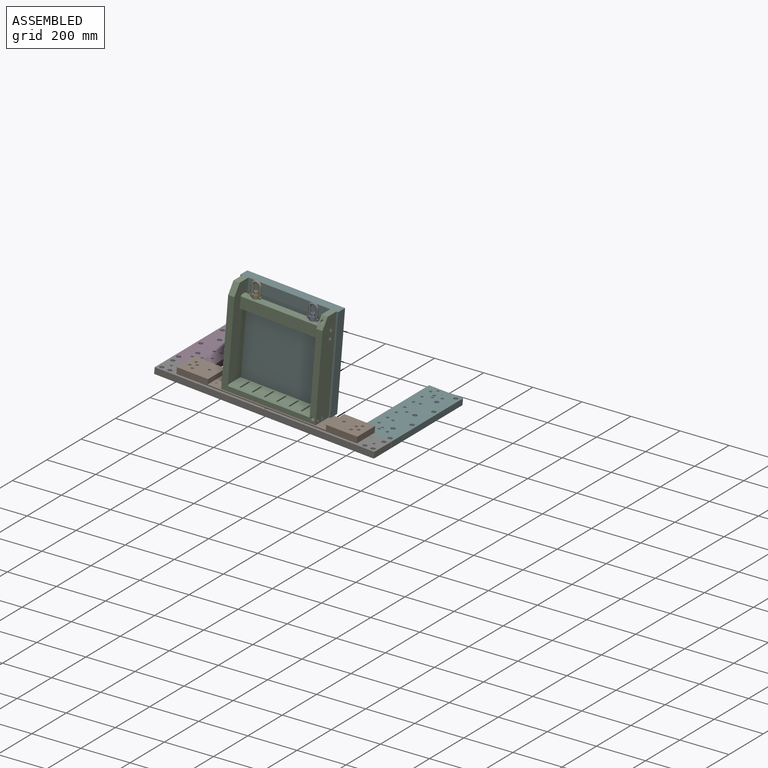
[diagram: assembled view]
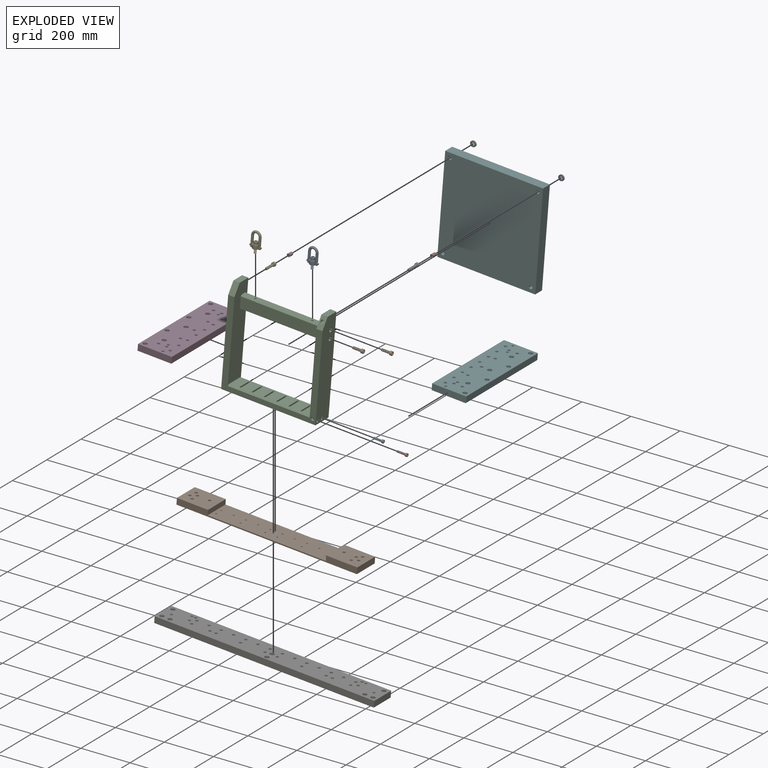
[diagram: exploded view]
GUIDED TOUR — MATED ASSEMBLY WITH SUBASSEMBLIES (Onshape document 2e98514b22ffc82cd9aeb843, AutoMate assembly 2e98514b22ffc82cd9aeb843_ddf671fd6050322d3ed2cb32_9506bc91af3bad2d1c995257_default)

This assembly has 25 component occurrences arranged in 18 top-level units: 15 individual components plus 3 subassemblies (S0, S1, S2). The tour has two levels: first the top level, where each subassembly is treated as one rigid unit; then each subassembly is toured internally in its own section (nesting deeper than one subassembly level is flattened into its subassembly's section).

Components are labeled P0..P24 across the whole record; subassembly units are labeled S0..S2. A mate is a constraint between two units; its type names the relative motion it leaves free:
  CYLINDRICAL — leaves both rotation about and translation along the listed axis free,
  PLANAR — leaves sliding in the plane through the listed point (normal = the listed direction) and rotation about that normal free.
Axis/direction vectors are unit vectors and 'through' points are millimeter coordinates, both in the assembly's world frame.

TOP-LEVEL MATES (between units; each subassembly's internal mates are listed in its own section)
  1. PLANAR "Planar 15": P15 <-> P13, direction (0.000, -1.000, 0.000) through (-750.69, 109.16, 287.09) mm
  2. PLANAR "Planar 11": P0 <-> P6, direction (0.000, -1.000, 0.000) through (-392.07, 103.76, 257.72) mm
  3. PLANAR "Planar 6": P16 <-> P7, direction (0.000, -1.000, 0.000) through (-230.72, 92.02, -154.45) mm
  4. PLANAR "Planar 1": P24 <-> P7, direction (-0.081, 0.000, -0.997) through (-605.76, 55.00, -111.28) mm
  5. PLANAR "Planar 2": P14 <-> P7, direction (-0.997, 0.000, 0.081) through (-1056.01, 300.52, -87.49) mm
  6. PLANAR "Planar 8": P6 <-> P24, direction (-0.081, 0.000, -0.997) through (-602.21, 103.76, -106.47) mm
  7. CYLINDRICAL "Cylindrical 16": S0 <-> P22, axis (0.997, 0.000, -0.081) through (-413.10, 45.66, -109.08) mm
  8. PLANAR "Planar 21": P22 <-> S0, direction (-0.997, 0.000, 0.081) through (-417.08, 42.47, -108.75) mm
  9. CYLINDRICAL "Cylindrical 4": P6 <-> P13, axis (0.000, 1.000, 0.000) through (-750.89, 93.76, 286.84) mm
  10. CYLINDRICAL "Cylindrical 11": S0 <-> S1, axis (0.081, 0.000, 0.997) through (-690.09, 58.36, 251.00) mm
  11. PLANAR "Planar 9": P21 <-> P6, direction (0.000, 1.000, 0.000) through (-392.07, 103.76, 257.72) mm
  12. CYLINDRICAL "Cylindrical 6": P17 <-> P6, axis (0.000, -1.000, 0.000) through (-392.07, 114.16, 257.72) mm
  13. PLANAR "Planar 19": P10 <-> S0, direction (-0.997, 0.000, 0.081) through (-394.90, 55.86, 189.35) mm
  14. PLANAR "Planar 3": P7 <-> P14, direction (0.000, 1.000, 0.000) through (-608.48, 92.02, -123.80) mm
  15. CYLINDRICAL "Cylindrical 7": P13 <-> P6, axis (0.000, 1.000, 0.000) through (-750.89, 106.46, 286.84) mm
  16. PLANAR "Planar 4": P7 <-> P14, direction (0.081, 0.000, 0.997) through (-951.32, 47.02, -83.25) mm
  17. PLANAR "Planar 13": P13 <-> P6, direction (0.000, -1.000, 0.000) through (-750.89, 103.76, 286.84) mm
  18. CYLINDRICAL "Cylindrical 8": P15 <-> P6, axis (0.000, -1.000, 0.000) through (-750.89, 114.16, 286.84) mm
  19. PLANAR "Planar 10": P6 <-> S0, direction (0.000, -1.000, 0.000) through (-586.03, 83.76, 92.87) mm
  20. CYLINDRICAL "Cylindrical 2": P6 <-> S0, axis (0.000, 1.000, 0.000) through (-780.00, 103.76, -71.98) mm
  21. CYLINDRICAL "Cylindrical 9": S2 <-> S0, axis (-0.081, 0.000, -0.997) through (-456.39, 58.36, 250.20) mm
  22. CYLINDRICAL "Cylindrical 3": P21 <-> P6, axis (0.000, -1.000, 0.000) through (-392.07, 94.26, 257.72) mm
  23. CYLINDRICAL "Cylindrical 10": S0 <-> P6, axis (0.000, 1.000, 0.000) through (-750.89, 83.76, 286.84) mm
  24. CYLINDRICAL "Cylindrical 12": P1 <-> S0, axis (-0.997, 0.000, 0.081) through (-387.60, 58.36, 217.54) mm
  25. CYLINDRICAL "Cylindrical 13": P10 <-> S0, axis (-0.997, 0.000, 0.081) through (-390.27, 58.36, 184.63) mm
  26. PLANAR "Planar 16": S2 <-> S0, direction (-0.081, 0.000, -0.997) through (-457.85, 58.36, 232.16) mm
  27. PLANAR "Planar 12": P17 <-> P0, direction (0.000, -1.000, 0.000) through (-392.07, 109.16, 257.72) mm
  28. PLANAR "Planar 20": P8 <-> S0, direction (-0.997, 0.000, 0.081) through (-417.08, 17.07, -108.75) mm
  29. PLANAR "Planar 5": P16 <-> P7, direction (0.081, 0.000, 0.997) through (-243.65, 221.02, -140.66) mm
  30. CYLINDRICAL "Cylindrical 1": P24 <-> P7, axis (0.081, 0.000, 0.997) through (-944.77, 77.02, -64.31) mm
  31. CYLINDRICAL "Cylindrical 5": P0 <-> P21, axis (0.000, 1.000, 0.000) through (-392.07, 109.16, 257.72) mm
  32. PLANAR "Planar 7": P16 <-> P7, direction (0.997, 0.000, -0.081) through (-160.95, 301.02, -160.11) mm
  33. PLANAR "Planar 17": S1 <-> S0, direction (-0.081, 0.000, -0.997) through (-690.09, 58.36, 251.00) mm
  34. PLANAR "Planar 14": P3 <-> P13, direction (0.000, 1.000, 0.000) through (-750.89, 103.76, 286.84) mm
  35. PLANAR "Planar 18": P1 <-> S0, direction (-0.997, 0.000, 0.081) through (-392.23, 55.86, 222.26) mm
  36. CYLINDRICAL "Cylindrical 15": P8 <-> S0, axis (-0.997, 0.000, 0.081) through (-413.10, 20.26, -109.08) mm
  37. CYLINDRICAL "Cylindrical 14": P3 <-> P15, axis (0.000, -1.000, 0.000) through (-750.89, 94.26, 286.84) mm

TOP-LEVEL ASSEMBLY ORDER
  1. S0 — the base component [order verified]
  2. P10 [order verified]
  3. S2 [order verified]
  4. S1 [order verified]
  5. P1 [order verified]
  6. P15 [order verified]
  7. P3 [order verified]
  8. P17 [order verified]
  9. P21 [order verified]
  10. P22 [order verified]
  11. P8 [order verified]
  12. P13 [order verified]
  13. P0 [order verified]
  14. P6 [order verified]
  15. P24 [order verified]
  16. P7 [order verified]
  17. P16 [order verified]
  18. P14 [order verified]
(P0, P1, P3, S1, P8, S2, P10, P13, P15, P21, P22 verified with a relaxed clearance tolerance: the source model stores slight part interference there.)
Order-tag legend:
  [order verified] — this step's position reverses a verified removal order: the component was checked to insert without passing through the ones already placed.

Of the 25 component occurrences, 4 carry the full construction recipe — the FeatureScript program that regenerates the part's solid from scratch; the rest are supplied as boundary geometry only. Each toured unit is shown spotlighted twice — assembled, then exploded with a leader line back to its socket (green = recipe-attached component, orange = geometry-only, blue = subassembly unit; the rest desaturated gray).
NOTE — document 2 of 3 of this assembly tour. The two overview renders and the header above are repeated from document 1; the component sections below continue where the previous document stopped.
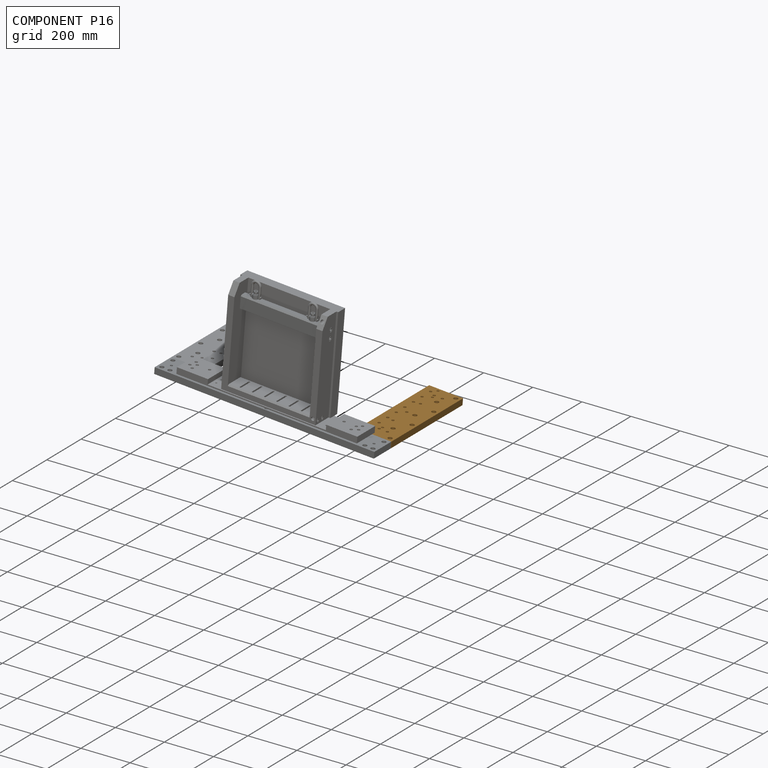
[diagram: component P16 — assembled]
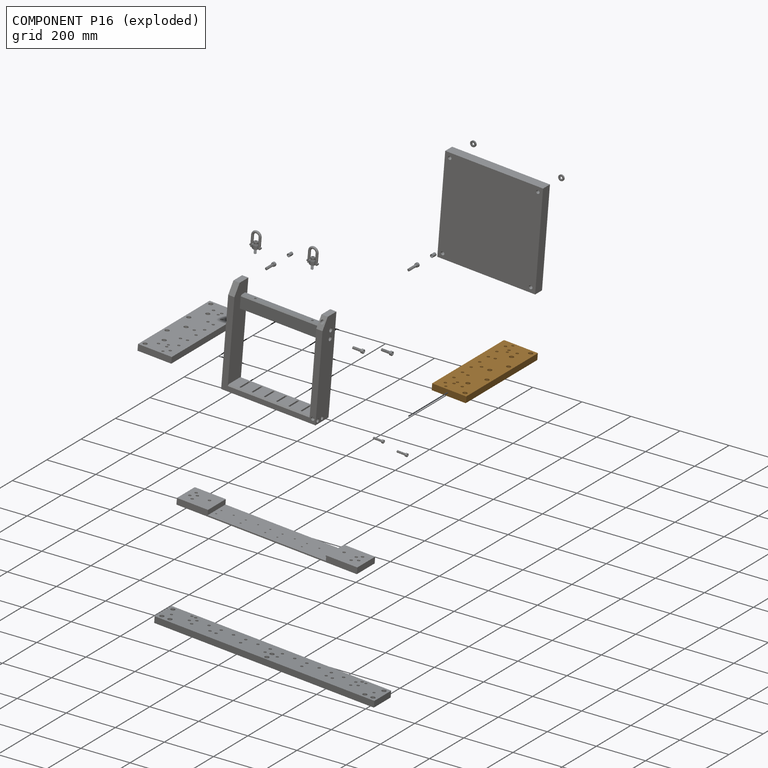
[diagram: component P16 — exploded]
COMPONENT P16 — geometry summary (no construction recipe available for this part):
  bounding box: 418.0 x 139.0 x 25.4 mm
  B-rep topology: 1 solid, 37 faces, 210 edges
  volume: 1391218 mm^3 (94% of its bounding box)
  symmetry: 2-fold rotationally symmetric about the x axis; mirror-symmetric across its y mid-plane, z mid-plane
Held by: PLANAR mate "Planar 6" to P7; PLANAR mate "Planar 5" to P7; PLANAR mate "Planar 7" to P7.
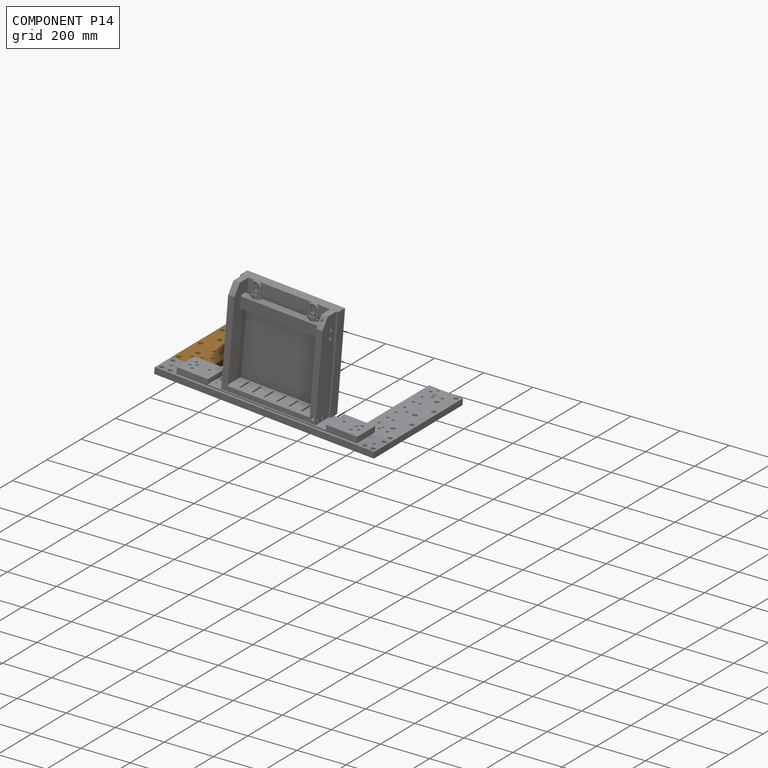
[diagram: component P14 — assembled]
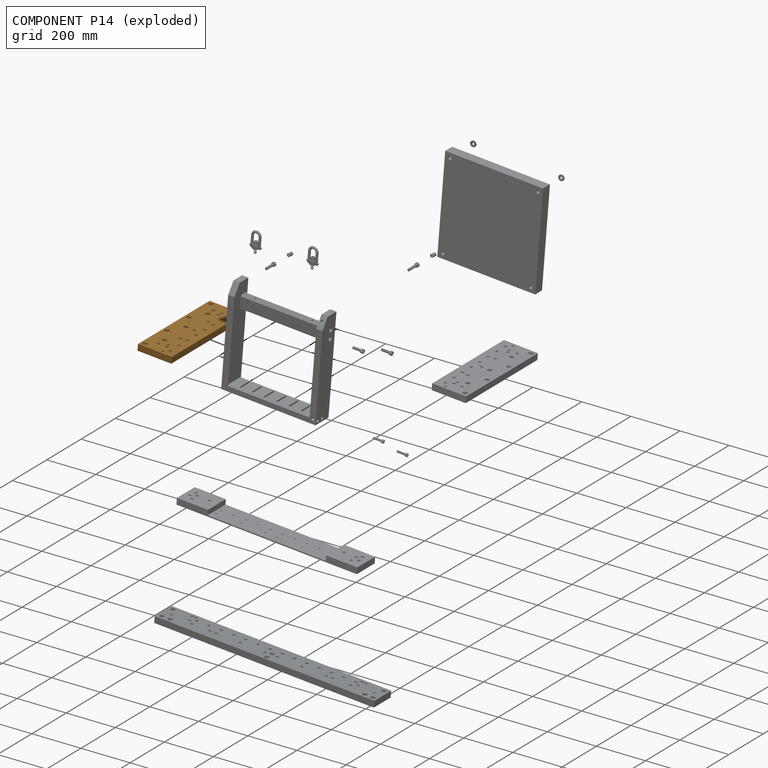
[diagram: component P14 — exploded]
COMPONENT P14 — geometry summary (no construction recipe available for this part):
  bounding box: 417.0 x 138.0 x 25.4 mm
  B-rep topology: 1 solid, 32 faces, 180 edges
  volume: 1377124 mm^3 (94% of its bounding box)
  symmetry: 2-fold rotationally symmetric about the x axis; mirror-symmetric across its y mid-plane, z mid-plane
Held by: PLANAR mate "Planar 2" to P7; PLANAR mate "Planar 3" to P7; PLANAR mate "Planar 4" to P7.
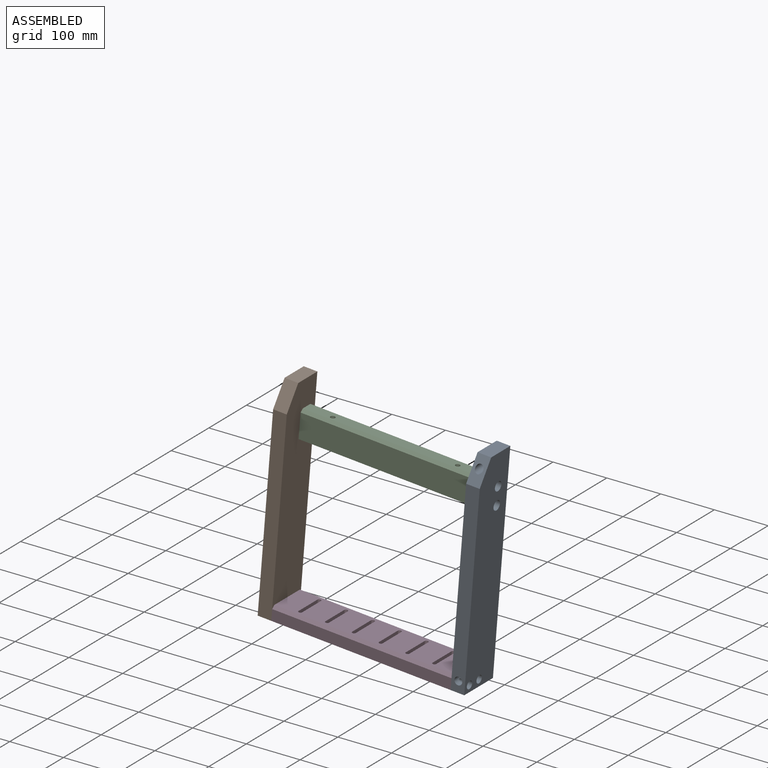
[diagram: subassembly S0 — assembled view]
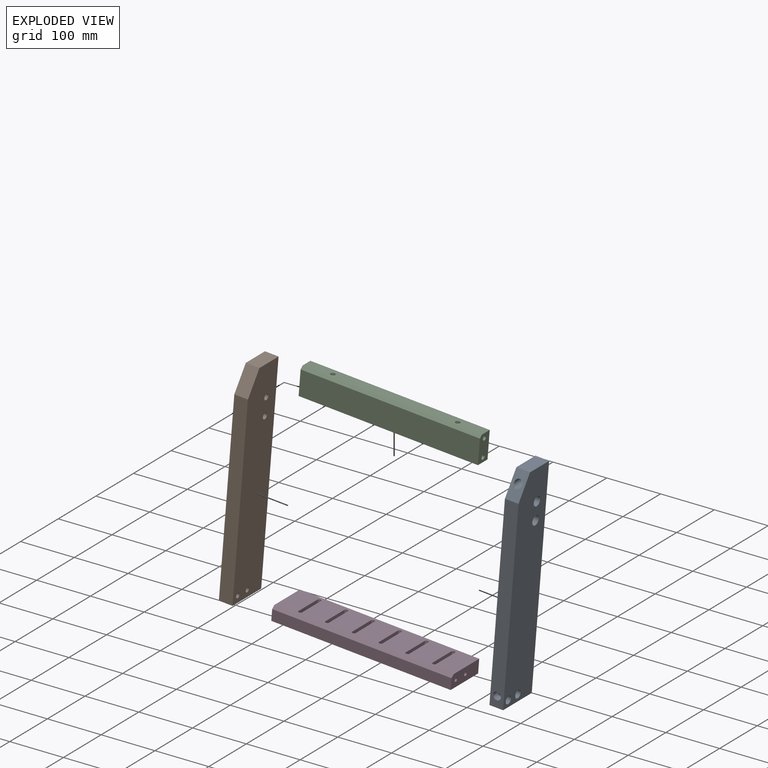
[diagram: subassembly S0 — exploded view]
SUBASSEMBLY S0 TOUR — 4 components, shown here in isolation at its own camera.

INTERNAL MATES
  1. PLANAR "Planar 9": P11 <-> P2, direction (0.081, 0.000, 0.997) through (-573.97, 60.94, 241.58) mm
  2. PLANAR "Planar 2": P4 <-> P20, direction (-0.081, 0.000, -0.997) through (-768.96, 45.66, -92.94) mm
  3. CYLINDRICAL "Cylindrical 2": P20 <-> P2, axis (0.997, 0.000, -0.081) through (-434.43, 20.26, -107.35) mm
  4. PLANAR "Planar 3": P11 <-> P2, direction (0.997, 0.000, -0.081) through (-409.29, 58.48, 202.47) mm
  5. PLANAR "Planar 5": P20 <-> P2, direction (-0.081, 0.000, -0.997) through (-602.21, 43.82, -106.47) mm
  6. PLANAR "Planar 4": P20 <-> P4, direction (0.000, -1.000, 0.000) through (-768.14, 7.56, -82.82) mm
  7. PLANAR "Planar 6": P2 <-> P20, direction (-0.997, 0.000, 0.081) through (-419.57, 46.20, 75.80) mm
  8. PLANAR "Planar 1": P4 <-> P20, direction (0.997, 0.000, -0.081) through (-753.07, 46.20, 102.86) mm
  9. CYLINDRICAL "Cylindrical 1": P11 <-> P2, axis (0.997, 0.000, -0.081) through (-433.62, 58.36, 221.28) mm
  10. CYLINDRICAL "Cylindrical 1": P11 <-> P2, axis (0.997, 0.000, -0.081) through (-433.62, 58.36, 221.28) mm
  11. PLANAR "Planar 4": P20 <-> P4, direction (0.000, -1.000, 0.000) through (-768.14, 7.56, -82.82) mm
  12. PLANAR "Planar 3": P11 <-> P2, direction (0.997, 0.000, -0.081) through (-409.29, 58.48, 202.47) mm
  13. PLANAR "Planar 9": P11 <-> P2, direction (0.081, 0.000, 0.997) through (-573.97, 60.94, 241.58) mm
  14. PLANAR "Planar 2": P4 <-> P20, direction (-0.081, 0.000, -0.997) through (-768.96, 45.66, -92.94) mm
  15. PLANAR "Planar 6": P2 <-> P20, direction (-0.997, 0.000, 0.081) through (-419.57, 46.20, 75.80) mm
  16. CYLINDRICAL "Cylindrical 2": P20 <-> P2, axis (0.997, 0.000, -0.081) through (-434.43, 20.26, -107.35) mm
  17. PLANAR "Planar 5": P20 <-> P2, direction (-0.081, 0.000, -0.997) through (-602.21, 43.82, -106.47) mm
  18. PLANAR "Planar 1": P4 <-> P20, direction (0.997, 0.000, -0.081) through (-753.07, 46.20, 102.86) mm

ASSEMBLY ORDER (within the subassembly)
  1. P20 — the base component [order verified]
  2. P11 [order verified]
  3. P4 [order verified]
  4. P2 [order verified]
Order-tag legend:
  [order verified] — this step's position reverses a verified removal order: the component was checked to insert without passing through the ones already placed.
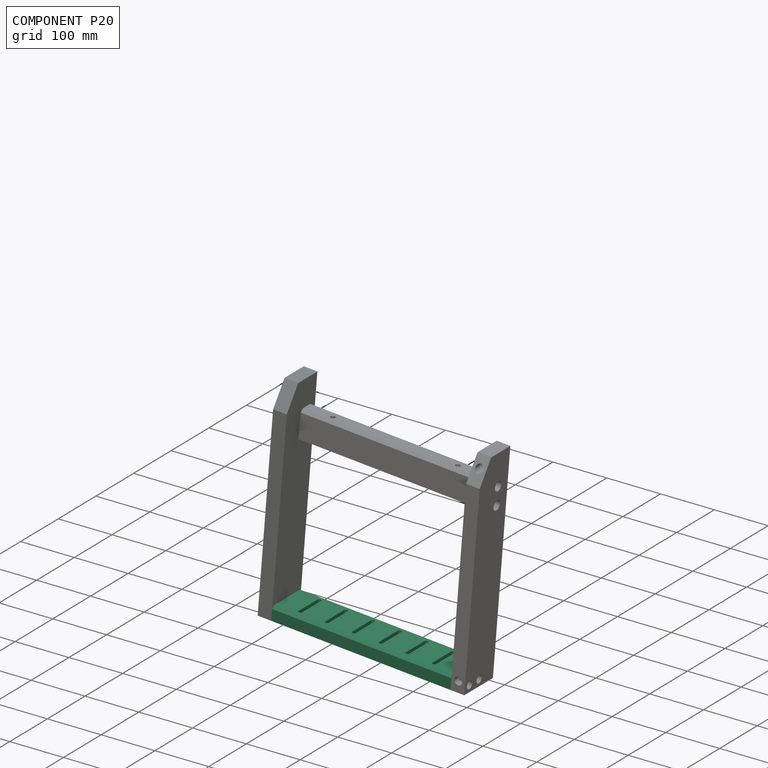
[diagram: component P20 — assembled]
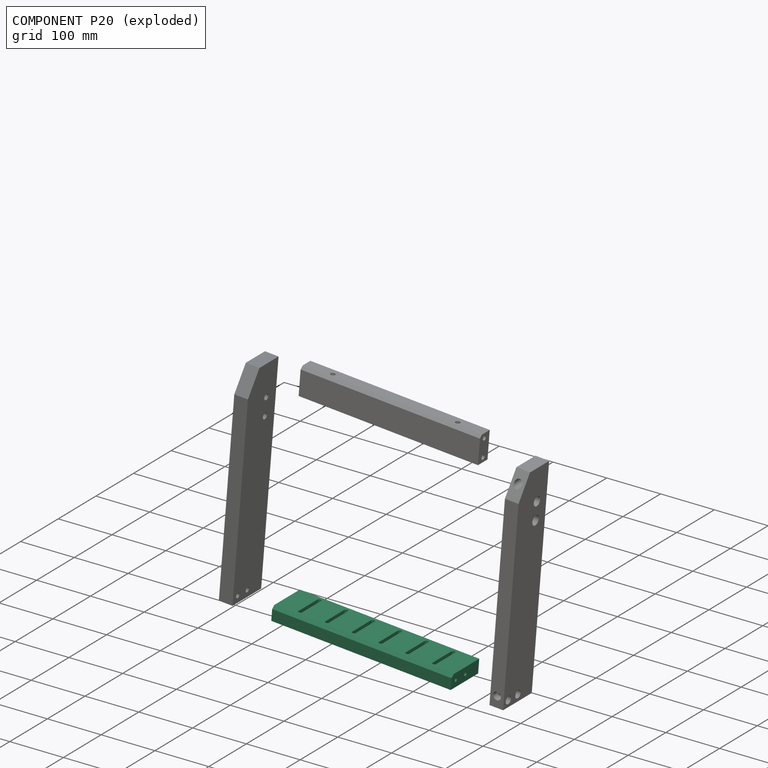
[diagram: component P20 — exploded]
COMPONENT P20 — recipe-attached (CADFS 00693077, mesh-verified: the recipe's output STEP matches this component's geometry to below the mesh-comparison resolution (tessellation chordal tolerance ~0.515 mm)).
Held by: PLANAR mate "Planar 2" to P4; CYLINDRICAL mate "Cylindrical 2" to P2; PLANAR mate "Planar 5" to P2; PLANAR mate "Planar 4" to P4; PLANAR mate "Planar 6" to P2; PLANAR mate "Planar 1" to P4; PLANAR mate "Planar 4" to P4; PLANAR mate "Planar 2" to P4; PLANAR mate "Planar 6" to P2; CYLINDRICAL mate "Cylindrical 2" to P2; PLANAR mate "Planar 5" to P2; PLANAR mate "Planar 1" to P4.
Construction recipe (FeatureScript — the CAD program that rebuilds this solid; sketch coordinates are in the units given by the * unit suffixes, e.g. mm):

FeatureScript 1511;
import(path : "onshape/std/geometry.fs", version : "1511.0");
import(path : "onshape/std/common.fs", version : "1511.0");
const mm = millimeter;
const VERTEX = EntityType.VERTEX;
const EDGE = EntityType.EDGE;
const FACE = EntityType.FACE;
const BODY = EntityType.BODY;
function v(x, y){return vector(x, y);}
function OD(order){return orderDisambiguation(order);}
function OSD(set){return originalSetDisambiguation(set);}
function TD(topology){return topologyDisambiguation(topology);}
function TDD(query){return trueDependencyDisambiguation(query);}
function sQuery(a, b, c) {return sketchEntityQuery(a, b, c);}

annotation { "Feature Type Name" : "Feature", "Feature Type Description" : "" }
export const myFeature = defineFeature(function(context is Context, id is Id, definition is map)
    precondition{}
    {
        {
            var Q0;
            Q0=qCreatedBy(makeId("Top.planeOp"),FACE);
            var sketch = newSketch(context, id + "F0", { "sketchPlane" : qUnion([Q0])});
            skLineSegment(sketch, "E0.bottom", {"start": v(-2.71, 0) * mm, "end": v(331.89, 0) * mm});
            skLineSegment(sketch, "E0.top", {"start": v(-2.71, 73.03) * mm, "end": v(331.89, 73.03) * mm});
            skLineSegment(sketch, "E0.left", {"start": v(-2.71, 0) * mm, "end": v(-2.71, 73.03) * mm});
            skLineSegment(sketch, "E0.right", {"start": v(331.89, 0) * mm, "end": v(331.89, 73.03) * mm});
            skSolve(sketch);
        }
        {
            var Q0;
            Q0=makeQuery(id+"F0.imprint","IMPRINT",FACE,{"disambiguationData":[TD([[makeQuery(id+"F0.imprint","IMPRINT",EDGE,{"derivedFrom":sQuery(id+"F0.wireOp",EDGE,"E0.bottom")}),1.0]])]});
            extrude(context, id + "F1", {"entities" : qUnion([Q0]), "depth" : 25.4 * mm, "offsetDistance" : 25.4 * mm});
        }
        {
            var Q0;
            Q0=makeQuery(id+"F1.opExtrude","CAP_EDGE",EDGE,{"disambiguationData":[OSD([sQuery(id+"F0.wireOp",EDGE,"E0.top")])],"isStart":false});
            chamfer(context, id + "F2", {"entities" : qUnion([Q0]), "width" : 5.08 * mm, "tangentPropagation" : true});
        }
        {
            var Q0;
            Q0=makeQuery(id+"F1.opExtrude","SWEPT_FACE",FACE,{"disambiguationData":[OSD([sQuery(id+"F0.wireOp",EDGE,"E0.right")])]});
            var sketch = newSketch(context, id + "F3", { "sketchPlane" : qUnion([Q0])});
            skLineSegment(sketch, "E1", {"start": v(73.02, 12.7) * mm, "end": v(60.32, 12.7) * mm});
            skPoint(sketch, "E1.startSnap0", {"position": v(0, 12.7) * mm});
            skLineSegment(sketch, "E2", {"start": v(60.32, 12.7) * mm, "end": v(34.92, 12.7) * mm});
            skSolve(sketch);
        }
        {
            var Q0;
            Q0=sQuery(id+"F3.wireOp",VERTEX,"E2.end");
            var Q1;
            Q1=sQuery(id+"F3.wireOp",VERTEX,"E2.start");
            var Q2;
            Q2=makeQuery(id+"F1.opExtrude","SWEPT_BODY",BODY,{"disambiguationData":[OSD([sQuery(id+"F0.wireOp",EDGE,"E0.bottom"),sQuery(id+"F0.wireOp",EDGE,"E0.top"),sQuery(id+"F0.wireOp",EDGE,"E0.left"),sQuery(id+"F0.wireOp",EDGE,"E0.right")])]});
            hole(context, id + "F4", {"style" : HoleStyle.SIMPLE, "endStyle" : HoleEndStyle.BLIND, "standardTappedOrClearance" : lookupTablePath({ "standard" : "ISO", "engagement" : "75%", "pitch" : "1.25 mm", "size" : "M8", "type" : "Tapped" }), "standardBlindInLast" : lookupTablePath({ "standard" : "ISO", "engagement" : "75%", "pitch" : "1.25 mm", "size" : "M8", "type" : "Tapped" }), "holeDiameter" : 6.8 * mm, "majorDiameter" : 8 * mm, "showTappedDepth" : true, "holeDepth" : 23.15 * mm, "tappedDepth" : 19.4 * mm, "tapClearance" : 3, "locations" : qUnion([Q0, Q1]), "scope" : qUnion([Q2])});
        }
        {
            var Q0;
            Q0=makeQuery(id+"F1.opExtrude","SWEPT_FACE",FACE,{"disambiguationData":[OSD([sQuery(id+"F0.wireOp",EDGE,"E0.left")])]});
            var sketch = newSketch(context, id + "F5", { "sketchPlane" : qUnion([Q0])});
            skPoint(sketch, "E3.endSnap0", {"position": v(-73.03, 10.16) * mm});
            skLineSegment(sketch, "E4", {"start": v(-73.03, 12.7) * mm, "end": v(-60.33, 12.7) * mm});
            skLineSegment(sketch, "E5", {"start": v(-60.33, 12.7) * mm, "end": v(-34.92, 12.7) * mm});
            skSolve(sketch);
        }
        {
            var Q0;
            Q0=sQuery(id+"F5.wireOp",VERTEX,"E5.start");
            var Q1;
            Q1=sQuery(id+"F5.wireOp",VERTEX,"E5.end");
            var Q2;
            Q2=makeQuery(id+"F1.opExtrude","SWEPT_BODY",BODY,{"disambiguationData":[OSD([sQuery(id+"F0.wireOp",EDGE,"E0.bottom"),sQuery(id+"F0.wireOp",EDGE,"E0.top"),sQuery(id+"F0.wireOp",EDGE,"E0.left"),sQuery(id+"F0.wireOp",EDGE,"E0.right")])]});
            hole(context, id + "F6", {"style" : HoleStyle.SIMPLE, "endStyle" : HoleEndStyle.BLIND, "standardTappedOrClearance" : lookupTablePath({ "standard" : "ISO", "engagement" : "75%", "pitch" : "1.25 mm", "size" : "M8", "type" : "Tapped" }), "standardBlindInLast" : lookupTablePath({ "standard" : "ISO", "engagement" : "75%", "pitch" : "1.25 mm", "size" : "M8", "type" : "Tapped" }), "holeDiameter" : 6.8 * mm, "majorDiameter" : 8 * mm, "showTappedDepth" : true, "holeDepth" : 23.14 * mm, "tappedDepth" : 19.4 * mm, "tapClearance" : 3, "locations" : qUnion([Q0, Q1]), "scope" : qUnion([Q2])});
        }
        {
            var Q0;
            Q0=makeQuery(id+"F1.opExtrude","CAP_FACE",FACE,{"disambiguationData":[OSD([sQuery(id+"F0.wireOp",EDGE,"E0.bottom"),sQuery(id+"F0.wireOp",EDGE,"E0.top"),sQuery(id+"F0.wireOp",EDGE,"E0.left"),sQuery(id+"F0.wireOp",EDGE,"E0.right")])],"isStart":false});
            var sketch = newSketch(context, id + "F7", { "sketchPlane" : qUnion([Q0])});
            skLineSegment(sketch, "E6", {"start": v(164.59, 0) * mm, "end": v(164.59, 8.9) * mm});
            skLineSegment(sketch, "E7", {"start": v(164.59, 0) * mm, "end": v(164.59, 8.89) * mm});
            skLineSegment(sketch, "E8", {"start": v(164.59, 8.9) * mm, "end": v(139.58, 8.89) * mm});
            skLineSegment(sketch, "E9", {"start": v(164.59, 67.95) * mm, "end": v(164.59, 59.06) * mm});
            skLineSegment(sketch, "E10", {"start": v(164.59, 8.9) * mm, "end": v(164.59, 59.06) * mm});
            skLineSegment(sketch, "E11", {"start": v(164.59, 33.97) * mm, "end": v(145.67, 33.97) * mm});
            skLineSegment(sketch, "E12.MirrorCS", {"start": v(164.59, 59.06) * mm, "end": v(139.58, 59.06) * mm});
            skLineSegment(sketch, "E13", {"start": v(139.58, 8.89) * mm, "end": v(89.57, 8.89) * mm});
            skLineSegment(sketch, "E14", {"start": v(89.57, 8.89) * mm, "end": v(39.56, 8.89) * mm});
            skLineSegment(sketch, "E15.MirrorCS", {"start": v(139.58, 59.06) * mm, "end": v(89.57, 59.06) * mm});
            skLineSegment(sketch, "E16.MirrorCS", {"start": v(89.57, 59.06) * mm, "end": v(39.56, 59.06) * mm});
            skLineSegment(sketch, "E17.MirrorCS", {"start": v(164.59, 8.9) * mm, "end": v(189.6, 8.89) * mm});
            skLineSegment(sketch, "E18.MirrorCS", {"start": v(164.59, 59.06) * mm, "end": v(189.6, 59.06) * mm});
            skLineSegment(sketch, "E19.MirrorCS", {"start": v(189.6, 59.06) * mm, "end": v(239.6, 59.06) * mm});
            skLineSegment(sketch, "E20.MirrorCS", {"start": v(189.6, 8.89) * mm, "end": v(239.6, 8.89) * mm});
            skLineSegment(sketch, "E21.MirrorCS", {"start": v(239.6, 8.89) * mm, "end": v(289.62, 8.89) * mm});
            skLineSegment(sketch, "E22.MirrorCS", {"start": v(239.6, 59.06) * mm, "end": v(289.62, 59.06) * mm});
            skSolve(sketch);
        }
        {
            var Q0;
            Q0=sQuery(id+"F7.wireOp",VERTEX,"bd394d0c-9067-4817-904b-b2741602010b0.MirrorCS.end");
            var Q1;
            Q1=sQuery(id+"F7.wireOp",VERTEX,"be71b2b8-ef01-4875-8472-178ad34bbe620.MirrorCS.end");
            var Q2;
            Q2=sQuery(id+"F7.wireOp",VERTEX,"E21.MirrorCS.end");
            var Q3;
            Q3=sQuery(id+"F7.wireOp",VERTEX,"E22.MirrorCS.end");
            var Q4;
            Q4=makeQuery(id+"F1.opExtrude","SWEPT_BODY",BODY,{"disambiguationData":[OSD([sQuery(id+"F0.wireOp",EDGE,"E0.bottom"),sQuery(id+"F0.wireOp",EDGE,"E0.top"),sQuery(id+"F0.wireOp",EDGE,"E0.left"),sQuery(id+"F0.wireOp",EDGE,"E0.right")])]});
            hole(context, id + "F8", {"style" : HoleStyle.SIMPLE, "endStyle" : HoleEndStyle.THROUGH, "standardTappedOrClearance" : lookupTablePath({ "standard" : "ISO", "fit" : "Normal", "size" : "M6", "type" : "Clearance" }), "standardBlindInLast" : lookupTablePath({ "fit" : "Standard", "standard" : "ISO", "size" : "M6", "type" : "Clearance" }), "holeDiameter" : 6.6 * mm, "majorDiameter" : 6.35 * mm, "tappedDepth" : 19.38 * mm, "tapClearance" : 3, "locations" : qUnion([Q0, Q1, Q2, Q3]), "scope" : qUnion([Q4])});
        }
        {
            var Q0;
            Q0=makeQuery(id+"F1.opExtrude","CAP_FACE",FACE,{"disambiguationData":[OSD([sQuery(id+"F0.wireOp",EDGE,"E0.bottom"),sQuery(id+"F0.wireOp",EDGE,"E0.top"),sQuery(id+"F0.wireOp",EDGE,"E0.left"),sQuery(id+"F0.wireOp",EDGE,"E0.right")])],"isStart":false});
            var sketch = newSketch(context, id + "F9", { "sketchPlane" : qUnion([Q0])});
            skLineSegment(sketch, "E23", {"start": v(289.62, 8.89) * mm, "end": v(292.92, 8.89) * mm});
            skLineSegment(sketch, "E24", {"start": v(292.92, 8.89) * mm, "end": v(292.92, 59.06) * mm});
            skLineSegment(sketch, "E25", {"start": v(292.92, 59.06) * mm, "end": v(286.32, 59.06) * mm});
            skLineSegment(sketch, "E26", {"start": v(286.32, 59.06) * mm, "end": v(286.32, 8.89) * mm});
            skLineSegment(sketch, "E27", {"start": v(286.32, 8.89) * mm, "end": v(289.62, 8.89) * mm});
            skSolve(sketch);
        }
        {
            var Q0;
            {var subQ0=sQuery(id+"F9.wireOp",EDGE,"E24");Q0=makeQuery(id+"F9.imprint","IMPRINT",FACE,{"disambiguationData":[TD([[makeQuery(id+"F9.imprint","IMPRINT",EDGE,{"derivedFrom":subQ0}),1.0]])]});}
            extrude(context, id + "F10", {"entities" : qUnion([Q0]), "operationType" : NewBodyOperationType.REMOVE, "oppositeDirection" : true, "depth" : 25.4 * mm, "offsetDistance" : 25.4 * mm});
        }
        {
            var Q0;
            Q0=makeQuery(id+"F1.opExtrude","CAP_FACE",FACE,{"disambiguationData":[OSD([sQuery(id+"F0.wireOp",EDGE,"E0.bottom"),sQuery(id+"F0.wireOp",EDGE,"E0.top"),sQuery(id+"F0.wireOp",EDGE,"E0.left"),sQuery(id+"F0.wireOp",EDGE,"E0.right")])],"isStart":false});
            var sketch = newSketch(context, id + "F11", { "sketchPlane" : qUnion([Q0])});
            skArc(sketch, "E28.0", {"start": v(286.32, 8.89) * mm, "mid": v(289.62, 5.59) * mm, "end": v(292.92, 8.89) * mm});
            skLineSegment(sketch, "E29.0", {"start": v(286.32, 59.06) * mm, "end": v(286.32, 8.89) * mm});
            skLineSegment(sketch, "E30.0", {"start": v(292.92, 8.89) * mm, "end": v(292.92, 59.06) * mm});
            skArc(sketch, "E31.0", {"start": v(292.92, 59.06) * mm, "mid": v(289.62, 62.36) * mm, "end": v(286.32, 59.06) * mm});
            skLineSegment(sketch, "E32.1.0.0", {"start": v(242.9, 8.89) * mm, "end": v(242.9, 59.06) * mm});
            skArc(sketch, "E32.1.0.1", {"start": v(236.3, 8.89) * mm, "mid": v(239.6, 5.59) * mm, "end": v(242.9, 8.89) * mm});
            skLineSegment(sketch, "E32.1.0.2", {"start": v(236.3, 59.06) * mm, "end": v(236.3, 8.89) * mm});
            skArc(sketch, "E32.1.0.3", {"start": v(242.9, 59.06) * mm, "mid": v(239.6, 62.36) * mm, "end": v(236.3, 59.06) * mm});
            skLineSegment(sketch, "E32.2.0.0", {"start": v(192.9, 8.89) * mm, "end": v(192.9, 59.06) * mm});
            skArc(sketch, "E32.2.0.1", {"start": v(186.3, 8.89) * mm, "mid": v(189.6, 5.59) * mm, "end": v(192.9, 8.89) * mm});
            skLineSegment(sketch, "E32.2.0.2", {"start": v(186.3, 59.06) * mm, "end": v(186.3, 8.89) * mm});
            skArc(sketch, "E32.2.0.3", {"start": v(192.9, 59.06) * mm, "mid": v(189.6, 62.36) * mm, "end": v(186.3, 59.06) * mm});
            skLineSegment(sketch, "E32.3.0.0", {"start": v(142.88, 8.89) * mm, "end": v(142.88, 59.06) * mm});
            skArc(sketch, "E32.3.0.1", {"start": v(136.28, 8.89) * mm, "mid": v(139.58, 5.59) * mm, "end": v(142.88, 8.89) * mm});
            skLineSegment(sketch, "E32.3.0.2", {"start": v(136.28, 59.06) * mm, "end": v(136.28, 8.89) * mm});
            skArc(sketch, "E32.3.0.3", {"start": v(142.88, 59.06) * mm, "mid": v(139.58, 62.36) * mm, "end": v(136.28, 59.06) * mm});
            skLineSegment(sketch, "E32.4.0.0", {"start": v(92.87, 8.89) * mm, "end": v(92.87, 59.06) * mm});
            skArc(sketch, "E32.4.0.1", {"start": v(86.27, 8.89) * mm, "mid": v(89.57, 5.59) * mm, "end": v(92.87, 8.89) * mm});
            skLineSegment(sketch, "E32.4.0.2", {"start": v(86.27, 59.06) * mm, "end": v(86.27, 8.89) * mm});
            skArc(sketch, "E32.4.0.3", {"start": v(92.87, 59.06) * mm, "mid": v(89.57, 62.36) * mm, "end": v(86.27, 59.06) * mm});
            skLineSegment(sketch, "E32.5.0.0", {"start": v(42.86, 8.89) * mm, "end": v(42.86, 59.06) * mm});
            skArc(sketch, "E32.5.0.1", {"start": v(36.26, 8.89) * mm, "mid": v(39.56, 5.59) * mm, "end": v(42.86, 8.89) * mm});
            skLineSegment(sketch, "E32.5.0.2", {"start": v(36.26, 59.06) * mm, "end": v(36.26, 8.89) * mm});
            skArc(sketch, "E32.5.0.3", {"start": v(42.86, 59.06) * mm, "mid": v(39.56, 62.36) * mm, "end": v(36.26, 59.06) * mm});
            skLineSegment(sketch, "E32.direction1", {"start": v(292.92, 8.89) * mm, "end": v(242.9, 8.89) * mm, "construction": true});
            skSolve(sketch);
        }
        {
            var Q0;
            Q0=makeQuery(id+"F11.imprint","IMPRINT",FACE,{"disambiguationData":[TD([[makeQuery(id+"F11.imprint","IMPRINT",EDGE,{"derivedFrom":sQuery(id+"F11.wireOp",EDGE,"E32.1.0.0")}),1.0]])]});
            var Q1;
            Q1=makeQuery(id+"F11.imprint","IMPRINT",FACE,{"disambiguationData":[TD([[makeQuery(id+"F11.imprint","IMPRINT",EDGE,{"derivedFrom":sQuery(id+"F11.wireOp",EDGE,"E32.2.0.0")}),1.0]])]});
            var Q2;
            Q2=makeQuery(id+"F11.imprint","IMPRINT",FACE,{"disambiguationData":[TD([[makeQuery(id+"F11.imprint","IMPRINT",EDGE,{"derivedFrom":sQuery(id+"F11.wireOp",EDGE,"E32.3.0.0")}),1.0]])]});
            var Q3;
            Q3=makeQuery(id+"F11.imprint","IMPRINT",FACE,{"disambiguationData":[TD([[makeQuery(id+"F11.imprint","IMPRINT",EDGE,{"derivedFrom":sQuery(id+"F11.wireOp",EDGE,"E32.4.0.0")}),1.0]])]});
            var Q4;
            Q4=makeQuery(id+"F11.imprint","IMPRINT",FACE,{"disambiguationData":[TD([[makeQuery(id+"F11.imprint","IMPRINT",EDGE,{"derivedFrom":sQuery(id+"F11.wireOp",EDGE,"E32.5.0.0")}),1.0]])]});
            var Q5;
            Q5=makeQuery(id+"F11.imprint","IMPRINT",FACE,{"disambiguationData":[TD([[makeQuery(id+"F11.imprint","IMPRINT",EDGE,{"derivedFrom":sQuery(id+"F11.wireOp",EDGE,"E32.6.0.0")}),1.0]])]});
            var Q6;
            Q6=makeQuery(id+"F11.imprint","IMPRINT",FACE,{"disambiguationData":[TD([[makeQuery(id+"F11.imprint","IMPRINT",EDGE,{"derivedFrom":sQuery(id+"F11.wireOp",EDGE,"E32.7.0.0")}),1.0]])]});
            extrude(context, id + "F12", {"entities" : qUnion([Q0, Q1, Q2, Q3, Q4, Q5, Q6]), "operationType" : NewBodyOperationType.REMOVE, "oppositeDirection" : true, "depth" : 25.4 * mm, "offsetDistance" : 25.4 * mm});
        }
    });
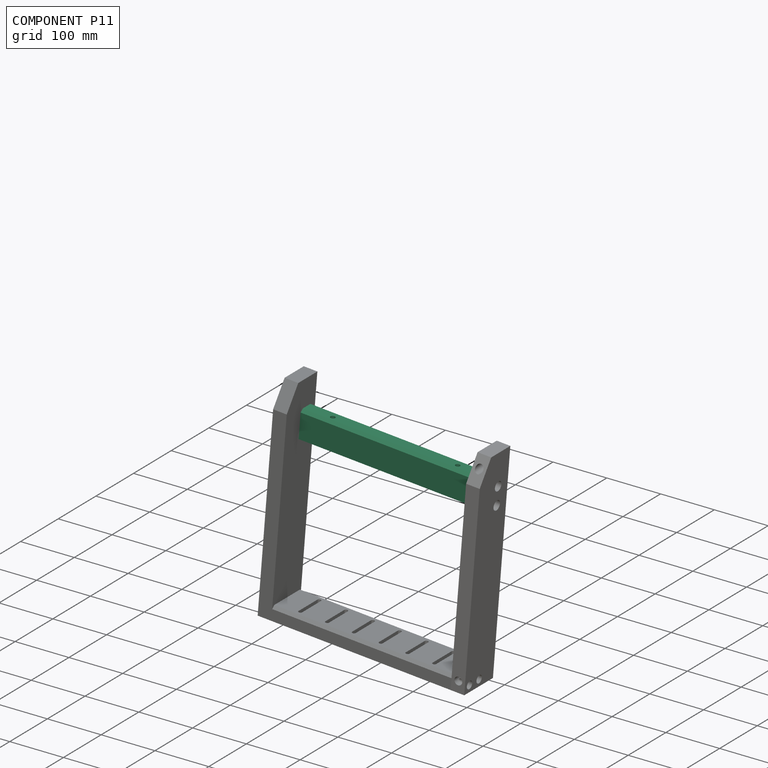
[diagram: component P11 — assembled]
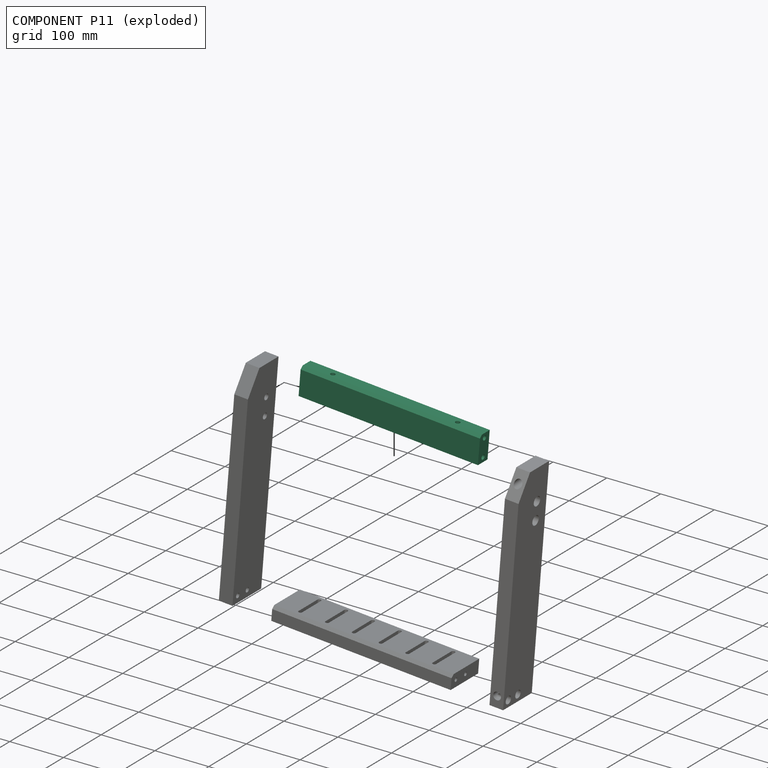
[diagram: component P11 — exploded]
COMPONENT P11 — recipe-attached (CADFS 00693078, mesh-verified: the recipe's output STEP matches this component's geometry to below the mesh-comparison resolution (tessellation chordal tolerance ~0.509 mm)).
Held by: PLANAR mate "Planar 9" to P2; PLANAR mate "Planar 3" to P2; CYLINDRICAL mate "Cylindrical 1" to P2; CYLINDRICAL mate "Cylindrical 1" to P2; PLANAR mate "Planar 3" to P2; PLANAR mate "Planar 9" to P2.
Construction recipe (FeatureScript — the CAD program that rebuilds this solid; sketch coordinates are in the units given by the * unit suffixes, e.g. mm):

FeatureScript 1511;
import(path : "onshape/std/geometry.fs", version : "1511.0");
import(path : "onshape/std/common.fs", version : "1511.0");
const mm = millimeter;
const VERTEX = EntityType.VERTEX;
const EDGE = EntityType.EDGE;
const FACE = EntityType.FACE;
const BODY = EntityType.BODY;
function v(x, y){return vector(x, y);}
function OD(order){return orderDisambiguation(order);}
function OSD(set){return originalSetDisambiguation(set);}
function TD(topology){return topologyDisambiguation(topology);}
function TDD(query){return trueDependencyDisambiguation(query);}
function sQuery(a, b, c) {return sketchEntityQuery(a, b, c);}

annotation { "Feature Type Name" : "Feature", "Feature Type Description" : "" }
export const myFeature = defineFeature(function(context is Context, id is Id, definition is map)
    precondition{}
    {
        {
            var Q0;
            Q0=qCreatedBy(makeId("Top.planeOp"),FACE);
            var sketch = newSketch(context, id + "F0", { "sketchPlane" : qUnion([Q0])});
            skLineSegment(sketch, "E0.bottom", {"start": v(-2.71, 0) * mm, "end": v(331.89, 0) * mm});
            skLineSegment(sketch, "E0.top", {"start": v(-2.71, 25.4) * mm, "end": v(331.89, 25.4) * mm});
            skLineSegment(sketch, "E0.left", {"start": v(-2.71, 0) * mm, "end": v(-2.71, 25.4) * mm});
            skLineSegment(sketch, "E0.right", {"start": v(331.89, 0) * mm, "end": v(331.89, 25.4) * mm});
            skSolve(sketch);
        }
        {
            var Q0;
            Q0=makeQuery(id+"F0.imprint","IMPRINT",FACE,{"disambiguationData":[TD([[makeQuery(id+"F0.imprint","IMPRINT",EDGE,{"derivedFrom":sQuery(id+"F0.wireOp",EDGE,"E0.bottom")}),1.0]])]});
            extrude(context, id + "F1", {"entities" : qUnion([Q0]), "depth" : 50.8 * mm, "offsetDistance" : 25.4 * mm});
        }
        {
            var Q0;
            Q0=makeQuery(id+"F1.opExtrude","SWEPT_FACE",FACE,{"disambiguationData":[OSD([sQuery(id+"F0.wireOp",EDGE,"E0.right")])]});
            var sketch = newSketch(context, id + "F2", { "sketchPlane" : qUnion([Q0])});
            skLineSegment(sketch, "E1", {"start": v(12.7, 50.8) * mm, "end": v(12.7, 41.91) * mm});
            skLineSegment(sketch, "E2", {"start": v(12.7, 0) * mm, "end": v(12.7, 8.9) * mm});
            skSolve(sketch);
        }
        {
            var Q0;
            Q0=makeQuery(id+"F1.opExtrude","SWEPT_FACE",FACE,{"disambiguationData":[OSD([sQuery(id+"F0.wireOp",EDGE,"E0.left")])]});
            var sketch = newSketch(context, id + "F3", { "sketchPlane" : qUnion([Q0])});
            skLineSegment(sketch, "E3.0", {"start": v(-12.7, 50.8) * mm, "end": v(-12.7, 41.91) * mm});
            skLineSegment(sketch, "E4.0", {"start": v(-12.7, 0) * mm, "end": v(-12.7, 8.9) * mm});
            skSolve(sketch);
        }
        {
            var Q0;
            Q0=sQuery(id+"F3.wireOp",VERTEX,"E3.0.end");
            var Q1;
            Q1=sQuery(id+"F3.wireOp",VERTEX,"E4.0.end");
            var Q2;
            Q2=sQuery(id+"F2.wireOp",VERTEX,"E1.end");
            var Q3;
            Q3=sQuery(id+"F2.wireOp",VERTEX,"E2.end");
            var Q4;
            Q4=makeQuery(id+"F1.opExtrude","SWEPT_BODY",BODY,{"disambiguationData":[OSD([sQuery(id+"F0.wireOp",EDGE,"E0.bottom"),sQuery(id+"F0.wireOp",EDGE,"E0.top"),sQuery(id+"F0.wireOp",EDGE,"E0.left"),sQuery(id+"F0.wireOp",EDGE,"E0.right")])]});
            hole(context, id + "F4", {"style" : HoleStyle.SIMPLE, "endStyle" : HoleEndStyle.BLIND, "standardTappedOrClearance" : lookupTablePath({ "standard" : "ISO", "engagement" : "75%", "pitch" : "1.25 mm", "size" : "M10", "type" : "Tapped" }), "standardBlindInLast" : lookupTablePath({ "standard" : "ISO", "engagement" : "75%", "pitch" : "1.25 mm", "size" : "M10", "type" : "Tapped" }), "holeDiameter" : 8.8 * mm, "majorDiameter" : 10 * mm, "showTappedDepth" : true, "holeDepth" : 23.13 * mm, "tappedDepth" : 19.38 * mm, "tapClearance" : 3, "locations" : qUnion([Q0, Q1, Q2, Q3]), "scope" : qUnion([Q4])});
        }
        {
            var Q0;
            Q0=makeQuery(id+"F1.opExtrude","CAP_EDGE",EDGE,{"disambiguationData":[OSD([sQuery(id+"F0.wireOp",EDGE,"E0.top")])],"isStart":true});
            chamfer(context, id + "F5", {"entities" : qUnion([Q0]), "width" : 5.08 * mm, "tangentPropagation" : true});
        }
        {
            var Q0;
            Q0=makeQuery(id+"F1.opExtrude","CAP_FACE",FACE,{"disambiguationData":[OSD([sQuery(id+"F0.wireOp",EDGE,"E0.bottom"),sQuery(id+"F0.wireOp",EDGE,"E0.top"),sQuery(id+"F0.wireOp",EDGE,"E0.left"),sQuery(id+"F0.wireOp",EDGE,"E0.right")])],"isStart":true});
            var sketch = newSketch(context, id + "F6", { "sketchPlane" : qUnion([Q0])});
            skLineSegment(sketch, "E5", {"start": v(-2.71, 0) * mm, "end": v(-2.71, -12.7) * mm});
            skLineSegment(sketch, "E6", {"start": v(-2.71, -12.7) * mm, "end": v(48.09, -12.7) * mm});
            skLineSegment(sketch, "E7", {"start": v(331.89, 0) * mm, "end": v(331.89, -12.7) * mm});
            skLineSegment(sketch, "E8", {"start": v(331.89, -12.7) * mm, "end": v(281.09, -12.7) * mm});
            skSolve(sketch);
        }
        {
            var Q0;
            Q0=sQuery(id+"F6.wireOp",VERTEX,"RAnJ8e52-AIoe-Ubsq-hwi4-Y3Cf9GMspgCn.end");
            var Q1;
            Q1=sQuery(id+"F6.wireOp",VERTEX,"ImLu8xNf-lyD7-Dvmo-gDWg-cQjJC2BbcEMu.end");
            var Q2;
            Q2=sQuery(id+"F6.wireOp",VERTEX,"E6.end");
            var Q3;
            Q3=sQuery(id+"F6.wireOp",VERTEX,"E8.end");
            var Q4;
            Q4=makeQuery(id+"F1.opExtrude","SWEPT_BODY",BODY,{"disambiguationData":[OSD([sQuery(id+"F0.wireOp",EDGE,"E0.bottom"),sQuery(id+"F0.wireOp",EDGE,"E0.top"),sQuery(id+"F0.wireOp",EDGE,"E0.left"),sQuery(id+"F0.wireOp",EDGE,"E0.right")])]});
            hole(context, id + "F7", {"style" : HoleStyle.SIMPLE, "endStyle" : HoleEndStyle.THROUGH, "standardTappedOrClearance" : lookupTablePath({ "standard" : "ISO", "engagement" : "75%", "pitch" : "1.5 mm", "size" : "M10", "type" : "Tapped" }), "standardBlindInLast" : lookupTablePath({ "standard" : "ISO", "engagement" : "75%", "pitch" : "1.5 mm", "size" : "M10", "type" : "Tapped" }), "holeDiameter" : 8.5 * mm, "majorDiameter" : 10 * mm, "showTappedDepth" : true, "tappedDepth" : 19.38 * mm, "tapClearance" : 3, "locations" : qUnion([Q0, Q1, Q2, Q3]), "scope" : qUnion([Q4])});
        }
    });
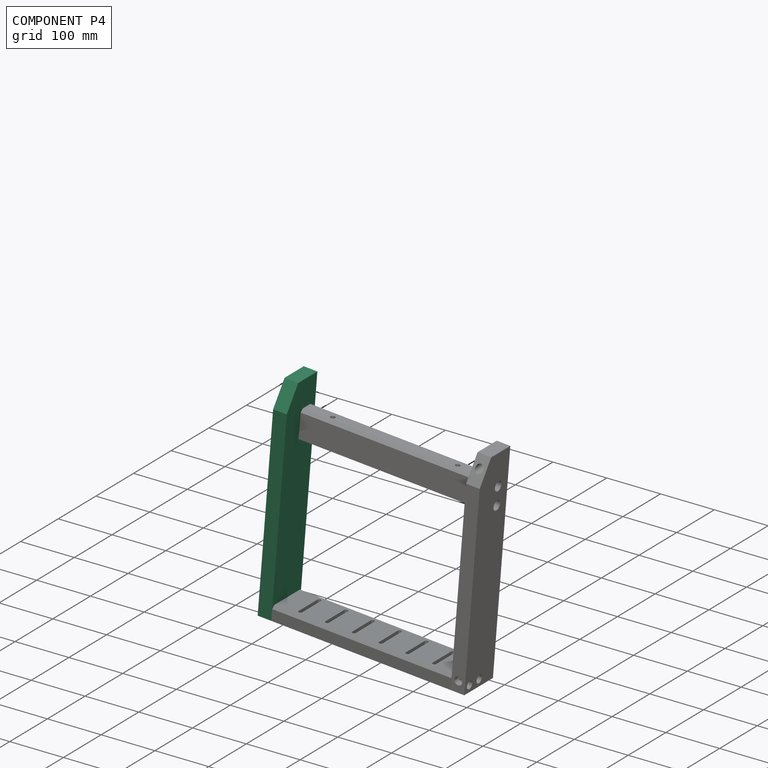
[diagram: component P4 — assembled]
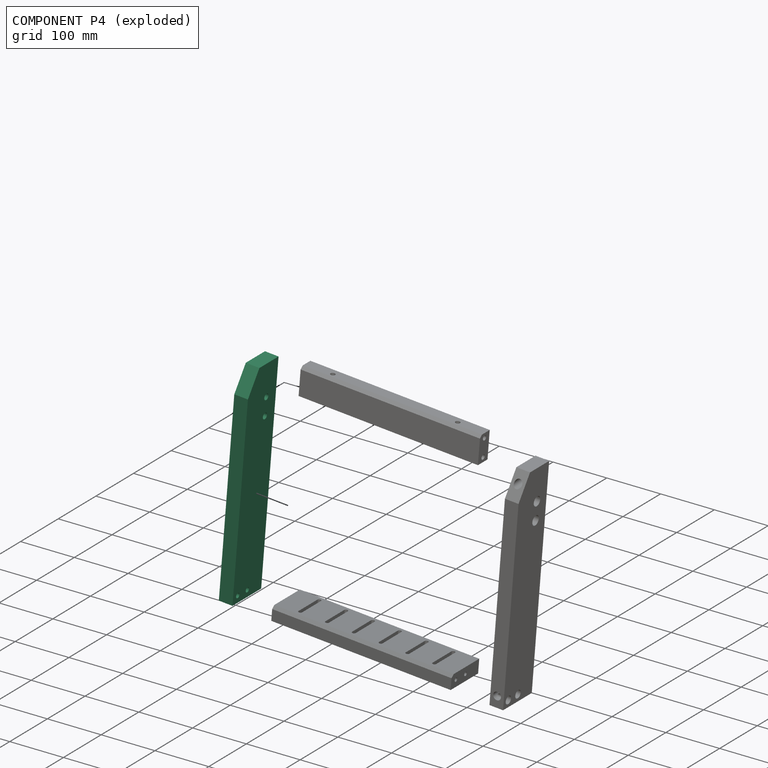
[diagram: component P4 — exploded]
COMPONENT P4 — recipe-attached (CADFS 00693076, mesh-verified: the recipe's output STEP matches this component's geometry to below the mesh-comparison resolution (tessellation chordal tolerance ~0.612 mm)).
Held by: PLANAR mate "Planar 2" to P20; PLANAR mate "Planar 4" to P20; PLANAR mate "Planar 1" to P20; PLANAR mate "Planar 4" to P20; PLANAR mate "Planar 2" to P20; PLANAR mate "Planar 1" to P20.
Construction recipe (FeatureScript — the CAD program that rebuilds this solid; sketch coordinates are in the units given by the * unit suffixes, e.g. mm):

FeatureScript 1511;
import(path : "onshape/std/geometry.fs", version : "1511.0");
import(path : "onshape/std/common.fs", version : "1511.0");
const mm = millimeter;
const VERTEX = EntityType.VERTEX;
const EDGE = EntityType.EDGE;
const FACE = EntityType.FACE;
const BODY = EntityType.BODY;
function v(x, y){return vector(x, y);}
function OD(order){return orderDisambiguation(order);}
function OSD(set){return originalSetDisambiguation(set);}
function TD(topology){return topologyDisambiguation(topology);}
function TDD(query){return trueDependencyDisambiguation(query);}
function sQuery(a, b, c) {return sketchEntityQuery(a, b, c);}

annotation { "Feature Type Name" : "Feature", "Feature Type Description" : "" }
export const myFeature = defineFeature(function(context is Context, id is Id, definition is map)
    precondition{}
    {
        {
            var Q0;
            Q0=qCreatedBy(makeId("Front.planeOp"),FACE);
            var sketch = newSketch(context, id + "F0", { "sketchPlane" : qUnion([Q0])});
            skLineSegment(sketch, "E0", {"start": v(0, 0) * mm, "end": v(0, 400) * mm});
            skLineSegment(sketch, "E1", {"start": v(0, 400) * mm, "end": v(50.8, 400) * mm});
            skLineSegment(sketch, "E2", {"start": v(0, 0) * mm, "end": v(76.2, 0) * mm});
            skLineSegment(sketch, "E3", {"start": v(76.2, 0) * mm, "end": v(76.2, 355.6) * mm});
            skLineSegment(sketch, "E4", {"start": v(76.2, 355.6) * mm, "end": v(50.8, 400) * mm});
            skSolve(sketch);
        }
        {
            var Q0;
            Q0=makeQuery(id+"F0.imprint","IMPRINT",FACE,{"disambiguationData":[TD([[makeQuery(id+"F0.imprint","IMPRINT",EDGE,{"derivedFrom":sQuery(id+"F0.wireOp",EDGE,"E0")}),-1.0]])]});
            extrude(context, id + "F1", {"entities" : qUnion([Q0]), "depth" : 25.4 * mm, "offsetDistance" : 25.4 * mm});
        }
        {
            var Q0;
            Q0=makeQuery(id+"F1.opExtrude","SWEPT_FACE",FACE,{"disambiguationData":[OSD([sQuery(id+"F0.wireOp",EDGE,"E0")])]});
            var sketch = newSketch(context, id + "F2", { "sketchPlane" : qUnion([Q0])});
            skLineSegment(sketch, "E5", {"start": v(12.7, 0) * mm, "end": v(12.7, 20) * mm});
            skLineSegment(sketch, "E6", {"start": v(12.7, 400) * mm, "end": v(12.7, 380) * mm});
            skSolve(sketch);
        }
        {
            var Q0;
            Q0=sQuery(id+"F2.wireOp",VERTEX,"E5.end");
            var Q1;
            Q1=sQuery(id+"F2.wireOp",VERTEX,"E6.end");
            var Q2;
            Q2=makeQuery(id+"F1.opExtrude","SWEPT_BODY",BODY,{"disambiguationData":[OSD([sQuery(id+"F0.wireOp",EDGE,"E0"),sQuery(id+"F0.wireOp",EDGE,"E1"),sQuery(id+"F0.wireOp",EDGE,"E2"),sQuery(id+"F0.wireOp",EDGE,"E3"),sQuery(id+"F0.wireOp",EDGE,"E4")])]});
            hole(context, id + "F3", {"style" : HoleStyle.SIMPLE, "endStyle" : HoleEndStyle.BLIND, "standardTappedOrClearance" : lookupTablePath({ "standard" : "ISO", "engagement" : "75%", "pitch" : "1.5 mm", "size" : "M10", "type" : "Tapped" }), "standardBlindInLast" : lookupTablePath({ "standard" : "ISO", "engagement" : "75%", "pitch" : "1.5 mm", "size" : "M10", "type" : "Tapped" }), "holeDiameter" : 8.5 * mm, "majorDiameter" : 10 * mm, "showTappedDepth" : true, "holeDepth" : 23.9 * mm, "tappedDepth" : 19.4 * mm, "tapClearance" : 3, "locations" : qUnion([Q0, Q1]), "scope" : qUnion([Q2])});
        }
        {
            var Q0;
            Q0=makeQuery(id+"F1.opExtrude","CAP_FACE",FACE,{"disambiguationData":[OSD([sQuery(id+"F0.wireOp",EDGE,"E0"),sQuery(id+"F0.wireOp",EDGE,"E1"),sQuery(id+"F0.wireOp",EDGE,"E2"),sQuery(id+"F0.wireOp",EDGE,"E3"),sQuery(id+"F0.wireOp",EDGE,"E4")])],"isStart":false});
            var sketch = newSketch(context, id + "F4", { "sketchPlane" : qUnion([Q0])});
            skLineSegment(sketch, "E7", {"start": v(76.2, 0) * mm, "end": v(76.2, 12.7) * mm});
            skLineSegment(sketch, "E8", {"start": v(63.5, 12.7) * mm, "end": v(76.2, 12.7) * mm});
            skLineSegment(sketch, "E9", {"start": v(38.1, 12.7) * mm, "end": v(63.5, 12.7) * mm});
            skSolve(sketch);
        }
        {
            var Q0;
            Q0=sQuery(id+"F4.wireOp",VERTEX,"E9.start");
            var Q1;
            Q1=sQuery(id+"F4.wireOp",VERTEX,"E9.end");
            var Q2;
            Q2=makeQuery(id+"F1.opExtrude","SWEPT_BODY",BODY,{"disambiguationData":[OSD([sQuery(id+"F0.wireOp",EDGE,"E0"),sQuery(id+"F0.wireOp",EDGE,"E1"),sQuery(id+"F0.wireOp",EDGE,"E2"),sQuery(id+"F0.wireOp",EDGE,"E3"),sQuery(id+"F0.wireOp",EDGE,"E4")])]});
            hole(context, id + "F5", {"style" : HoleStyle.C_BORE, "endStyle" : HoleEndStyle.THROUGH, "standardTappedOrClearance" : lookupTablePath({ "standard" : "ISO", "fit" : "Normal", "size" : "M8", "type" : "Clearance" }), "standardBlindInLast" : lookupTablePath({ "fit" : "Standard", "standard" : "ISO", "size" : "M8", "type" : "Clearance" }), "holeDiameter" : 8.8 * mm, "cBoreDiameter" : 14.25 * mm, "cBoreDepth" : 8 * mm, "majorDiameter" : 8 * mm, "tappedDepth" : 19.4 * mm, "tapClearance" : 3, "locations" : qUnion([Q0, Q1]), "scope" : qUnion([Q2])});
        }
        {
            var Q0;
            Q0=makeQuery(id+"F1.opExtrude","CAP_FACE",FACE,{"disambiguationData":[OSD([sQuery(id+"F0.wireOp",EDGE,"E0"),sQuery(id+"F0.wireOp",EDGE,"E1"),sQuery(id+"F0.wireOp",EDGE,"E2"),sQuery(id+"F0.wireOp",EDGE,"E3"),sQuery(id+"F0.wireOp",EDGE,"E4")])],"isStart":false});
            var sketch = newSketch(context, id + "F6", { "sketchPlane" : qUnion([Q0])});
            skLineSegment(sketch, "E10", {"start": v(25.4, 400) * mm, "end": v(25.4, 340.3) * mm});
            skLineSegment(sketch, "E11", {"start": v(25.4, 340.3) * mm, "end": v(25.4, 307.3) * mm});
            skSolve(sketch);
        }
        {
            var Q0;
            Q0=sQuery(id+"F6.wireOp",VERTEX,"E11.start");
            var Q1;
            Q1=sQuery(id+"F6.wireOp",VERTEX,"E11.end");
            var Q2;
            Q2=makeQuery(id+"F1.opExtrude","SWEPT_BODY",BODY,{"disambiguationData":[OSD([sQuery(id+"F0.wireOp",EDGE,"E0"),sQuery(id+"F0.wireOp",EDGE,"E1"),sQuery(id+"F0.wireOp",EDGE,"E2"),sQuery(id+"F0.wireOp",EDGE,"E3"),sQuery(id+"F0.wireOp",EDGE,"E4")])]});
            hole(context, id + "F7", {"style" : HoleStyle.C_BORE, "endStyle" : HoleEndStyle.THROUGH, "standardTappedOrClearance" : lookupTablePath({ "standard" : "ISO", "fit" : "Normal", "size" : "M10", "type" : "Clearance" }), "standardBlindInLast" : lookupTablePath({ "fit" : "Standard", "standard" : "ISO", "size" : "M10", "type" : "Clearance" }), "holeDiameter" : 11 * mm, "cBoreDiameter" : 17.25 * mm, "cBoreDepth" : 10 * mm, "majorDiameter" : 10 * mm, "tappedDepth" : 19.38 * mm, "tapClearance" : 3, "locations" : qUnion([Q0, Q1]), "scope" : qUnion([Q2])});
        }
    });
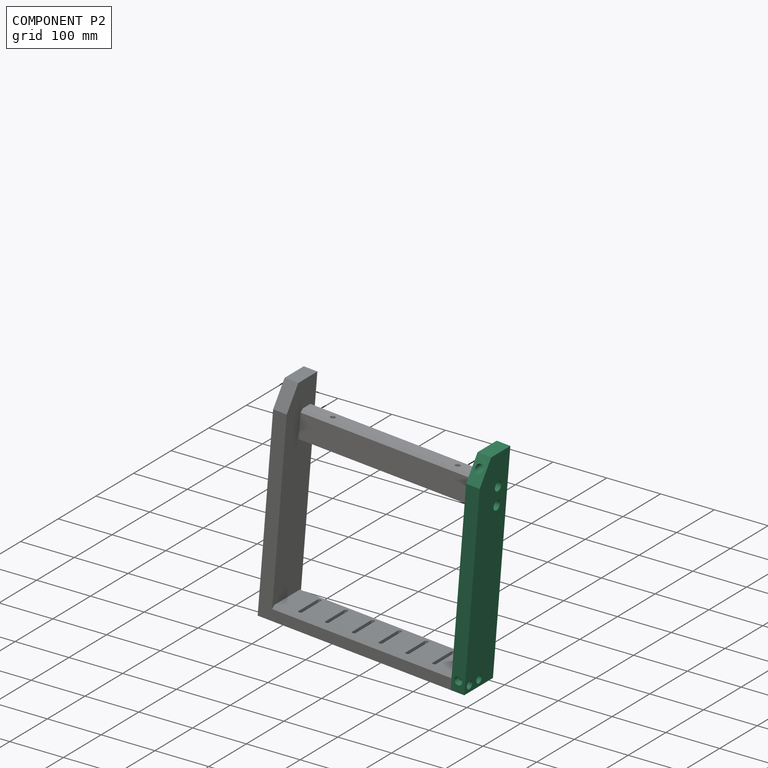
[diagram: component P2 — assembled]
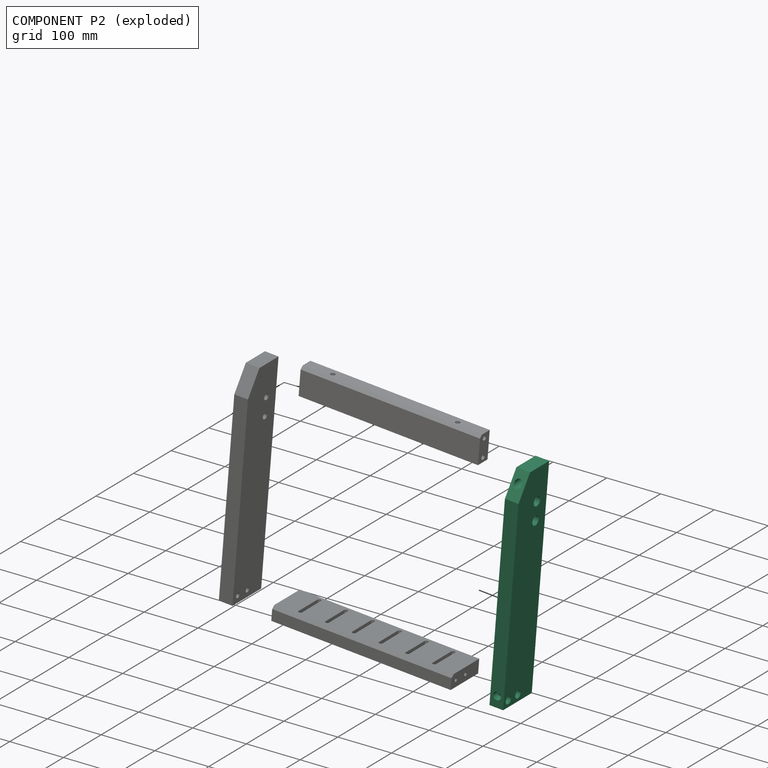
[diagram: component P2 — exploded]
COMPONENT P2 — recipe-attached (CADFS 00693075, mesh-verified: the recipe's output STEP matches this component's geometry to below the mesh-comparison resolution (tessellation chordal tolerance ~0.612 mm)).
Held by: PLANAR mate "Planar 9" to P11; CYLINDRICAL mate "Cylindrical 2" to P20; PLANAR mate "Planar 3" to P11; PLANAR mate "Planar 5" to P20; PLANAR mate "Planar 6" to P20; CYLINDRICAL mate "Cylindrical 1" to P11; CYLINDRICAL mate "Cylindrical 1" to P11; PLANAR mate "Planar 3" to P11; PLANAR mate "Planar 9" to P11; PLANAR mate "Planar 6" to P20; CYLINDRICAL mate "Cylindrical 2" to P20; PLANAR mate "Planar 5" to P20.
Construction recipe (FeatureScript — the CAD program that rebuilds this solid; sketch coordinates are in the units given by the * unit suffixes, e.g. mm):

FeatureScript 1511;
import(path : "onshape/std/geometry.fs", version : "1511.0");
import(path : "onshape/std/common.fs", version : "1511.0");
const mm = millimeter;
const VERTEX = EntityType.VERTEX;
const EDGE = EntityType.EDGE;
const FACE = EntityType.FACE;
const BODY = EntityType.BODY;
function v(x, y){return vector(x, y);}
function OD(order){return orderDisambiguation(order);}
function OSD(set){return originalSetDisambiguation(set);}
function TD(topology){return topologyDisambiguation(topology);}
function TDD(query){return trueDependencyDisambiguation(query);}
function sQuery(a, b, c) {return sketchEntityQuery(a, b, c);}

annotation { "Feature Type Name" : "Feature", "Feature Type Description" : "" }
export const myFeature = defineFeature(function(context is Context, id is Id, definition is map)
    precondition{}
    {
        {
            var Q0;
            Q0=qCreatedBy(makeId("Front.planeOp"),FACE);
            var sketch = newSketch(context, id + "F0", { "sketchPlane" : qUnion([Q0])});
            skLineSegment(sketch, "E0", {"start": v(0, 0) * mm, "end": v(0, 400) * mm});
            skLineSegment(sketch, "E1", {"start": v(0, 400) * mm, "end": v(50.8, 400) * mm});
            skLineSegment(sketch, "E2", {"start": v(0, 0) * mm, "end": v(76.2, 0) * mm});
            skLineSegment(sketch, "E3", {"start": v(76.2, 0) * mm, "end": v(76.2, 355.6) * mm});
            skLineSegment(sketch, "E4", {"start": v(76.2, 355.6) * mm, "end": v(50.8, 400) * mm});
            skSolve(sketch);
        }
        {
            var Q0;
            Q0=makeQuery(id+"F0.imprint","IMPRINT",FACE,{"disambiguationData":[TD([[makeQuery(id+"F0.imprint","IMPRINT",EDGE,{"derivedFrom":sQuery(id+"F0.wireOp",EDGE,"E0")}),-1.0]])]});
            extrude(context, id + "F1", {"entities" : qUnion([Q0]), "depth" : 25.4 * mm, "offsetDistance" : 25.4 * mm});
        }
        {
            var Q0;
            Q0=makeQuery(id+"F1.opExtrude","SWEPT_FACE",FACE,{"disambiguationData":[OSD([sQuery(id+"F0.wireOp",EDGE,"E0")])]});
            var sketch = newSketch(context, id + "F2", { "sketchPlane" : qUnion([Q0])});
            skLineSegment(sketch, "E5", {"start": v(12.7, 0) * mm, "end": v(12.7, 20) * mm});
            skLineSegment(sketch, "E6", {"start": v(12.7, 400) * mm, "end": v(12.7, 380) * mm});
            skSolve(sketch);
        }
        {
            var Q0;
            Q0=sQuery(id+"F2.wireOp",VERTEX,"E5.end");
            var Q1;
            Q1=sQuery(id+"F2.wireOp",VERTEX,"E6.end");
            var Q2;
            Q2=makeQuery(id+"F1.opExtrude","SWEPT_BODY",BODY,{"disambiguationData":[OSD([sQuery(id+"F0.wireOp",EDGE,"E0"),sQuery(id+"F0.wireOp",EDGE,"E1"),sQuery(id+"F0.wireOp",EDGE,"E2"),sQuery(id+"F0.wireOp",EDGE,"E3"),sQuery(id+"F0.wireOp",EDGE,"E4")])]});
            hole(context, id + "F3", {"style" : HoleStyle.SIMPLE, "endStyle" : HoleEndStyle.THROUGH, "standardTappedOrClearance" : lookupTablePath({ "standard" : "ISO", "engagement" : "75%", "pitch" : "1.5 mm", "size" : "M16", "type" : "Tapped" }), "standardBlindInLast" : lookupTablePath({ "standard" : "ISO", "engagement" : "75%", "pitch" : "1.5 mm", "size" : "M16", "type" : "Tapped" }), "holeDiameter" : 14.5 * mm, "majorDiameter" : 16 * mm, "showTappedDepth" : true, "tappedDepth" : 19.4 * mm, "tapClearance" : 3, "locations" : qUnion([Q0, Q1]), "scope" : qUnion([Q2])});
        }
        {
            var Q0;
            Q0=makeQuery(id+"F1.opExtrude","CAP_FACE",FACE,{"disambiguationData":[OSD([sQuery(id+"F0.wireOp",EDGE,"E0"),sQuery(id+"F0.wireOp",EDGE,"E1"),sQuery(id+"F0.wireOp",EDGE,"E2"),sQuery(id+"F0.wireOp",EDGE,"E3"),sQuery(id+"F0.wireOp",EDGE,"E4")])],"isStart":true});
            var sketch = newSketch(context, id + "F4", { "sketchPlane" : qUnion([Q0])});
            skLineSegment(sketch, "E7", {"start": v(-76.2, 0) * mm, "end": v(-76.2, 12.7) * mm});
            skLineSegment(sketch, "E8", {"start": v(-76.2, 12.7) * mm, "end": v(-63.5, 12.7) * mm});
            skLineSegment(sketch, "E9", {"start": v(-63.5, 12.7) * mm, "end": v(-38.1, 12.7) * mm});
            skSolve(sketch);
        }
        {
            var Q0;
            Q0=sQuery(id+"F4.wireOp",VERTEX,"E9.start");
            var Q1;
            Q1=sQuery(id+"F4.wireOp",VERTEX,"E9.end");
            var Q2;
            Q2=makeQuery(id+"F1.opExtrude","SWEPT_BODY",BODY,{"disambiguationData":[OSD([sQuery(id+"F0.wireOp",EDGE,"E0"),sQuery(id+"F0.wireOp",EDGE,"E1"),sQuery(id+"F0.wireOp",EDGE,"E2"),sQuery(id+"F0.wireOp",EDGE,"E3"),sQuery(id+"F0.wireOp",EDGE,"E4")])]});
            hole(context, id + "F5", {"style" : HoleStyle.C_BORE, "endStyle" : HoleEndStyle.THROUGH, "standardTappedOrClearance" : lookupTablePath({ "standard" : "ISO", "fit" : "Normal", "size" : "M8", "type" : "Clearance" }), "standardBlindInLast" : lookupTablePath({ "fit" : "Standard", "standard" : "ISO", "size" : "M8", "type" : "Clearance" }), "holeDiameter" : 8.8 * mm, "cBoreDiameter" : 14.25 * mm, "cBoreDepth" : 8 * mm, "majorDiameter" : 8 * mm, "tappedDepth" : 19.4 * mm, "tapClearance" : 3, "locations" : qUnion([Q0, Q1]), "scope" : qUnion([Q2])});
        }
        {
            var Q0;
            Q0=makeQuery(id+"F1.opExtrude","CAP_FACE",FACE,{"disambiguationData":[OSD([sQuery(id+"F0.wireOp",EDGE,"E0"),sQuery(id+"F0.wireOp",EDGE,"E1"),sQuery(id+"F0.wireOp",EDGE,"E2"),sQuery(id+"F0.wireOp",EDGE,"E3"),sQuery(id+"F0.wireOp",EDGE,"E4")])],"isStart":true});
            var sketch = newSketch(context, id + "F6", { "sketchPlane" : qUnion([Q0])});
            skLineSegment(sketch, "E10", {"start": v(-25.4, 400) * mm, "end": v(-25.4, 340.3) * mm});
            skLineSegment(sketch, "E11", {"start": v(-25.4, 340.3) * mm, "end": v(-25.4, 307.3) * mm});
            skSolve(sketch);
        }
        {
            var Q0;
            Q0=sQuery(id+"F6.wireOp",VERTEX,"E11.start");
            var Q1;
            Q1=sQuery(id+"F6.wireOp",VERTEX,"E11.end");
            var Q2;
            Q2=makeQuery(id+"F1.opExtrude","SWEPT_BODY",BODY,{"disambiguationData":[OSD([sQuery(id+"F0.wireOp",EDGE,"E0"),sQuery(id+"F0.wireOp",EDGE,"E1"),sQuery(id+"F0.wireOp",EDGE,"E2"),sQuery(id+"F0.wireOp",EDGE,"E3"),sQuery(id+"F0.wireOp",EDGE,"E4")])]});
            hole(context, id + "F7", {"style" : HoleStyle.C_BORE, "endStyle" : HoleEndStyle.THROUGH, "standardTappedOrClearance" : lookupTablePath({ "standard" : "ISO", "fit" : "Normal", "size" : "M10", "type" : "Clearance" }), "standardBlindInLast" : lookupTablePath({ "fit" : "Standard", "standard" : "ISO", "size" : "M10", "type" : "Clearance" }), "holeDiameter" : 11 * mm, "cBoreDiameter" : 17.25 * mm, "cBoreDepth" : 10 * mm, "majorDiameter" : 8 * mm, "tappedDepth" : 19.4 * mm, "tapClearance" : 3, "locations" : qUnion([Q0, Q1]), "scope" : qUnion([Q2])});
        }
    });
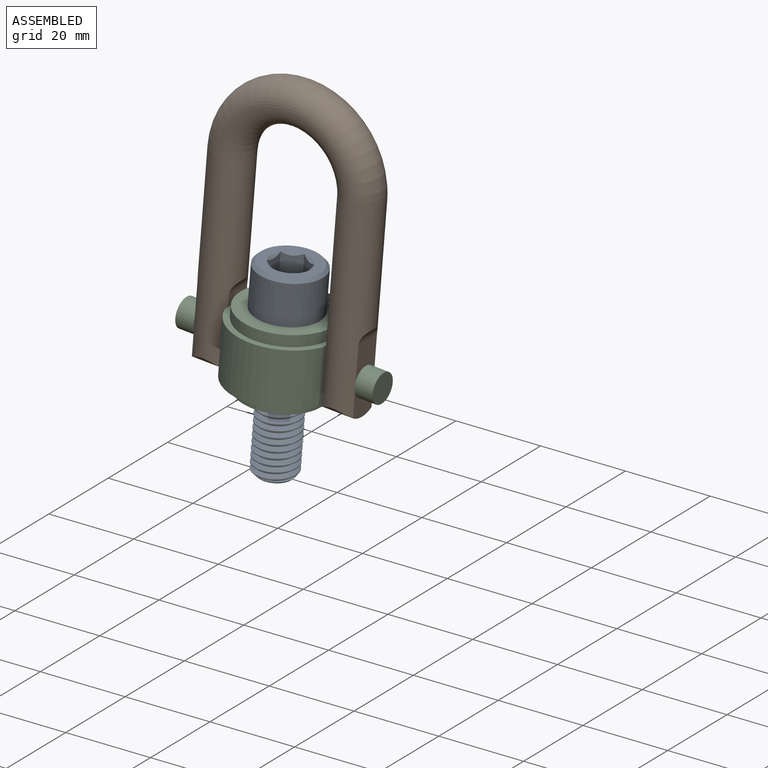
[diagram: subassembly S1 — assembled view]
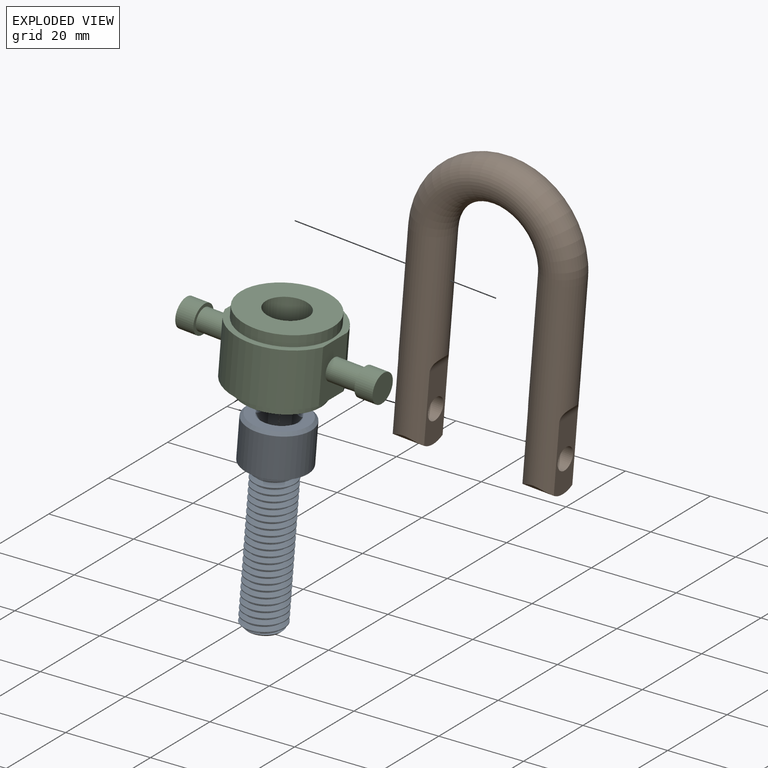
[diagram: subassembly S1 — exploded view]
SUBASSEMBLY S1 TOUR — 3 components, shown here in isolation at its own camera.

INTERNAL MATES
  1. PLANAR "Planar 2": P18 <-> P23, direction (0.997, 0.000, -0.081) through (-700.22, 55.24, 269.99) mm
  2. PLANAR "Planar 1": P5 <-> P23, direction (-0.081, 0.000, -0.997) through (-688.62, 58.36, 269.04) mm
  3. CYLINDRICAL "Cylindrical 2": P18 <-> P23, axis (0.997, 0.000, -0.081) through (-704.65, 58.36, 261.26) mm
  4. CYLINDRICAL "Cylindrical 1": P5 <-> P23, axis (-0.081, 0.000, -0.997) through (-688.24, 58.36, 273.77) mm
  5. CYLINDRICAL "Cylindrical 1": P5 <-> P23, axis (-0.081, 0.000, -0.997) through (-688.24, 58.36, 273.77) mm
  6. PLANAR "Planar 1": P5 <-> P23, direction (-0.081, 0.000, -0.997) through (-688.62, 58.36, 269.04) mm
  7. PLANAR "Planar 2": P18 <-> P23, direction (0.997, 0.000, -0.081) through (-700.22, 55.24, 269.99) mm
  8. CYLINDRICAL "Cylindrical 2": P18 <-> P23, axis (0.997, 0.000, -0.081) through (-704.65, 58.36, 261.26) mm

ASSEMBLY ORDER (within the subassembly)
  1. P23 — the base component [order heuristic]
  2. P5 [order heuristic]
  3. P18 [order heuristic]
Order-tag legend:
  [order heuristic] — this assembly is geometrically interlocked (no collision-free removal order exists), so components are listed in mate-graph order; insertion feasibility is not verified.
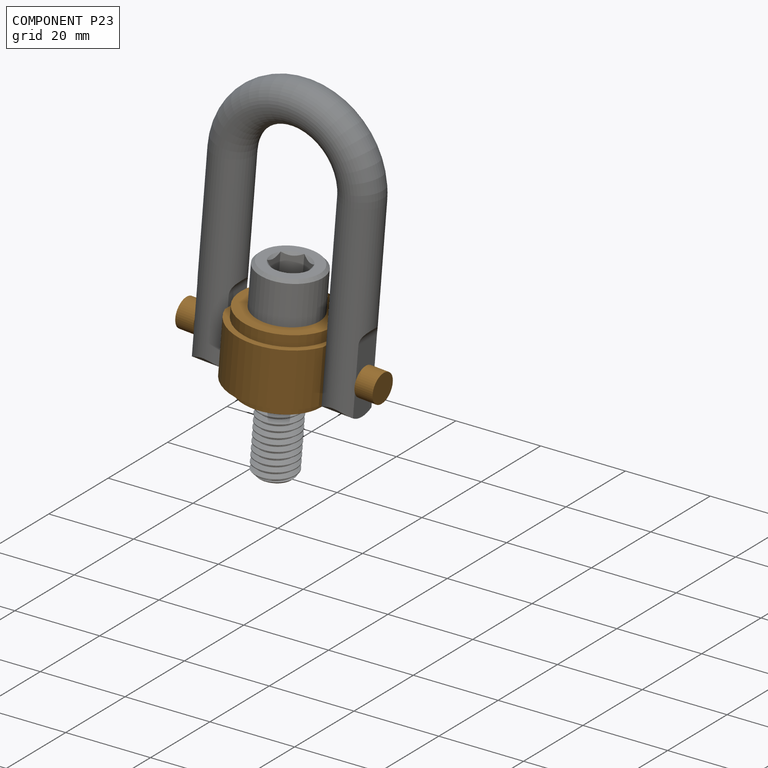
[diagram: component P23 — assembled]
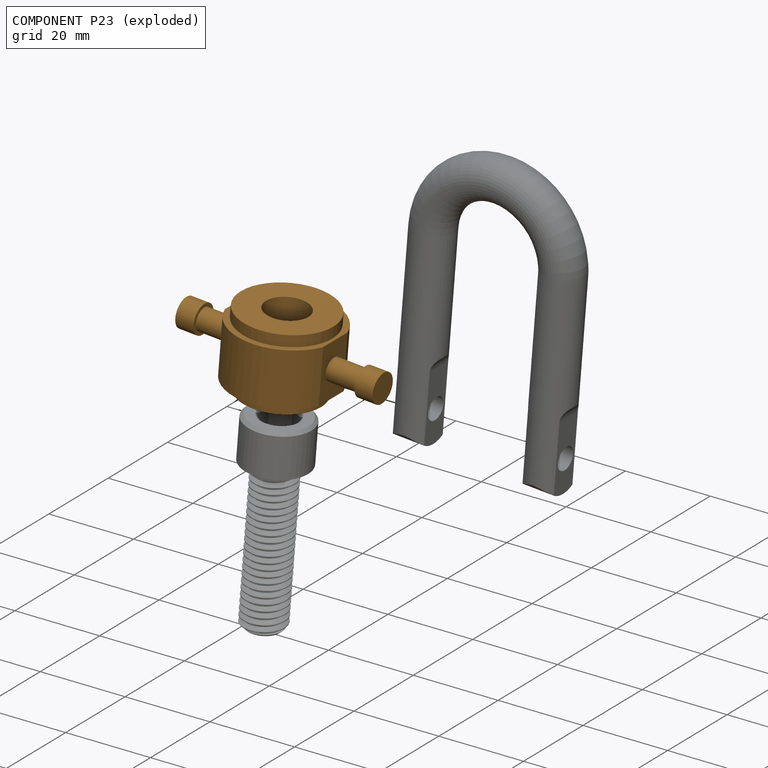
[diagram: component P23 — exploded]
COMPONENT P23 — geometry summary (no construction recipe available for this part):
  bounding box: 46.7 x 24.7 x 18.1 mm
  B-rep topology: 1 solid, 20 faces, 88 edges
  volume: 7171 mm^3 (34% of its bounding box)
  symmetry: 2-fold rotationally symmetric about the y axis; mirror-symmetric across its x mid-plane, z mid-plane
Held by: PLANAR mate "Planar 2" to P18; PLANAR mate "Planar 1" to P5; CYLINDRICAL mate "Cylindrical 2" to P18; CYLINDRICAL mate "Cylindrical 1" to P5; CYLINDRICAL mate "Cylindrical 1" to P5; PLANAR mate "Planar 1" to P5; PLANAR mate "Planar 2" to P18; CYLINDRICAL mate "Cylindrical 2" to P18.
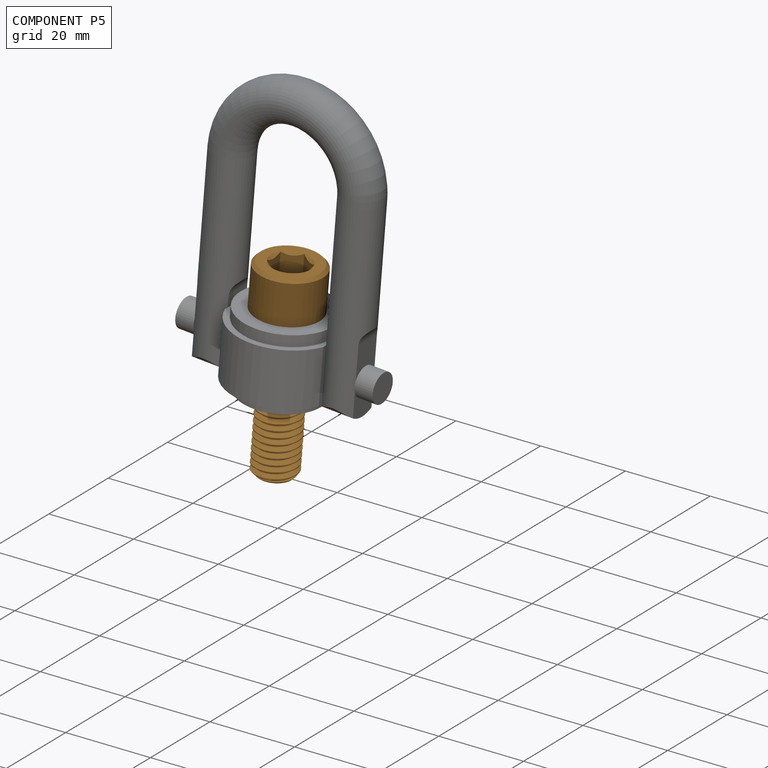
[diagram: component P5 — assembled]
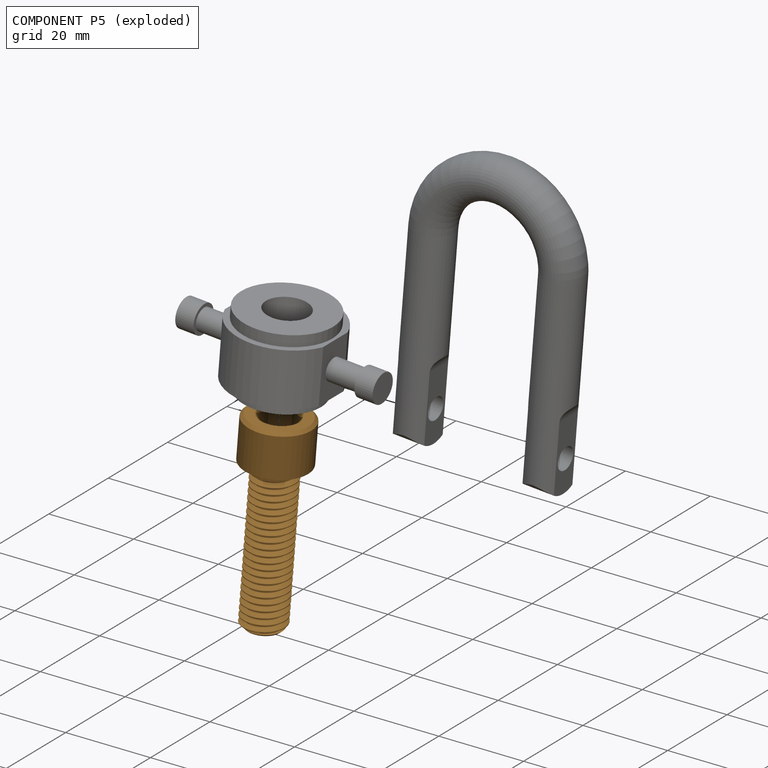
[diagram: component P5 — exploded]
COMPONENT P5 — geometry summary (no construction recipe available for this part):
  bounding box: 47.2 x 15.7 x 15.7 mm
  B-rep topology: 1 solid, 46 faces, 322 edges
  volume: 3891 mm^3 (33% of its bounding box)
  symmetry: 6-fold rotationally symmetric about the y axis
Held by: PLANAR mate "Planar 1" to P23; CYLINDRICAL mate "Cylindrical 1" to P23; CYLINDRICAL mate "Cylindrical 1" to P23; PLANAR mate "Planar 1" to P23.
